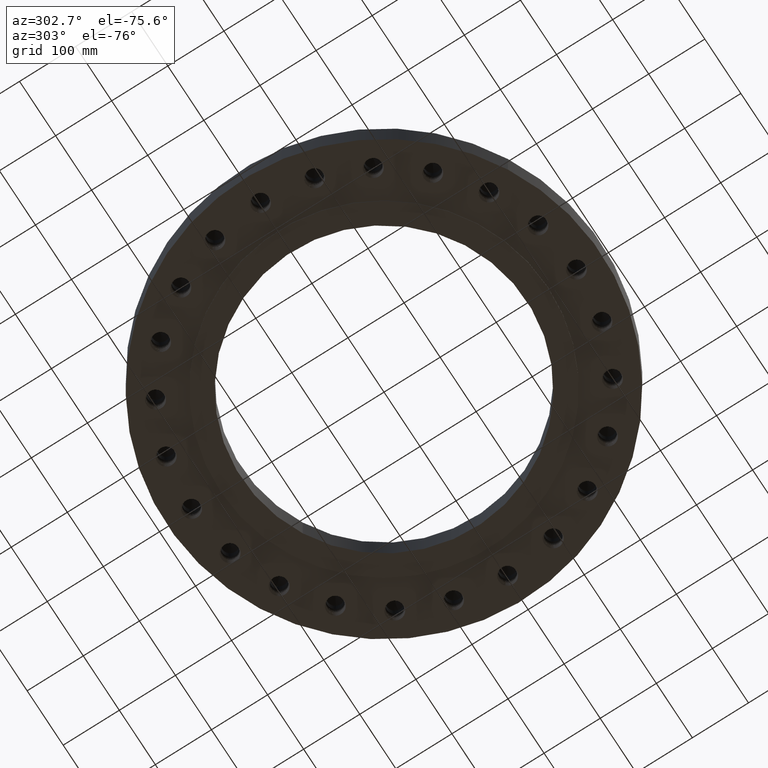
[diagram: clean part render]
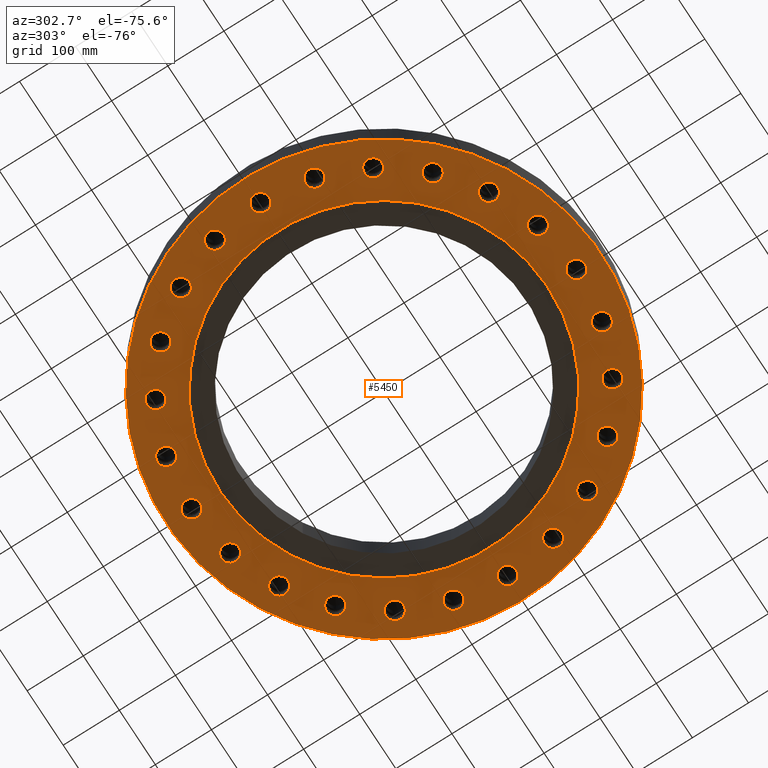
[diagram: same view with one face highlighted and labeled with its STEP entity id]
A machine part, auxiliary view. The second image highlights one B-rep face of the part: STEP entity #5450.
In plain terms, the highlighted planar face has unit normal (0, 0, -1).
Its self-contained STEP definition (entity closure, byte-faithful):
#4249=AXIS2_PLACEMENT_3D('Circle Axis2P3D',#4247,#4248,$) ;
#4269=AXIS2_PLACEMENT_3D('Circle Axis2P3D',#4267,#4268,$) ;
#4289=AXIS2_PLACEMENT_3D('Circle Axis2P3D',#4287,#4288,$) ;
#4301=AXIS2_PLACEMENT_3D('Plane Axis2P3D',#4298,#4299,#4300) ;
#4305=AXIS2_PLACEMENT_3D('Circle Axis2P3D',#4303,#4304,$) ;
#4314=AXIS2_PLACEMENT_3D('Circle Axis2P3D',#4312,#4313,$) ;
#4330=AXIS2_PLACEMENT_3D('Circle Axis2P3D',#4328,#4329,$) ;
#4339=AXIS2_PLACEMENT_3D('Circle Axis2P3D',#4337,#4338,$) ;
#4348=AXIS2_PLACEMENT_3D('Circle Axis2P3D',#4346,#4347,$) ;
#4357=AXIS2_PLACEMENT_3D('Circle Axis2P3D',#4355,#4356,$) ;
#4364=AXIS2_PLACEMENT_3D('Circle Axis2P3D',#4362,#4363,$) ;
#4396=AXIS2_PLACEMENT_3D('Circle Axis2P3D',#4394,#4395,$) ;
#4405=AXIS2_PLACEMENT_3D('Circle Axis2P3D',#4403,#4404,$) ;
#4412=AXIS2_PLACEMENT_3D('Circle Axis2P3D',#4410,#4411,$) ;
#4444=AXIS2_PLACEMENT_3D('Circle Axis2P3D',#4442,#4443,$) ;
#4453=AXIS2_PLACEMENT_3D('Circle Axis2P3D',#4451,#4452,$) ;
#4460=AXIS2_PLACEMENT_3D('Circle Axis2P3D',#4458,#4459,$) ;
#4492=AXIS2_PLACEMENT_3D('Circle Axis2P3D',#4490,#4491,$) ;
#4501=AXIS2_PLACEMENT_3D('Circle Axis2P3D',#4499,#4500,$) ;
#4508=AXIS2_PLACEMENT_3D('Circle Axis2P3D',#4506,#4507,$) ;
#4540=AXIS2_PLACEMENT_3D('Circle Axis2P3D',#4538,#4539,$) ;
#4549=AXIS2_PLACEMENT_3D('Circle Axis2P3D',#4547,#4548,$) ;
#4556=AXIS2_PLACEMENT_3D('Circle Axis2P3D',#4554,#4555,$) ;
#4588=AXIS2_PLACEMENT_3D('Circle Axis2P3D',#4586,#4587,$) ;
#4597=AXIS2_PLACEMENT_3D('Circle Axis2P3D',#4595,#4596,$) ;
#4604=AXIS2_PLACEMENT_3D('Circle Axis2P3D',#4602,#4603,$) ;
#4636=AXIS2_PLACEMENT_3D('Circle Axis2P3D',#4634,#4635,$) ;
#4645=AXIS2_PLACEMENT_3D('Circle Axis2P3D',#4643,#4644,$) ;
#4652=AXIS2_PLACEMENT_3D('Circle Axis2P3D',#4650,#4651,$) ;
#4684=AXIS2_PLACEMENT_3D('Circle Axis2P3D',#4682,#4683,$) ;
#4693=AXIS2_PLACEMENT_3D('Circle Axis2P3D',#4691,#4692,$) ;
#4700=AXIS2_PLACEMENT_3D('Circle Axis2P3D',#4698,#4699,$) ;
#4732=AXIS2_PLACEMENT_3D('Circle Axis2P3D',#4730,#4731,$) ;
#4741=AXIS2_PLACEMENT_3D('Circle Axis2P3D',#4739,#4740,$) ;
#4748=AXIS2_PLACEMENT_3D('Circle Axis2P3D',#4746,#4747,$) ;
#4780=AXIS2_PLACEMENT_3D('Circle Axis2P3D',#4778,#4779,$) ;
#4789=AXIS2_PLACEMENT_3D('Circle Axis2P3D',#4787,#4788,$) ;
#4796=AXIS2_PLACEMENT_3D('Circle Axis2P3D',#4794,#4795,$) ;
#4828=AXIS2_PLACEMENT_3D('Circle Axis2P3D',#4826,#4827,$) ;
#4837=AXIS2_PLACEMENT_3D('Circle Axis2P3D',#4835,#4836,$) ;
#4844=AXIS2_PLACEMENT_3D('Circle Axis2P3D',#4842,#4843,$) ;
#4876=AXIS2_PLACEMENT_3D('Circle Axis2P3D',#4874,#4875,$) ;
#4885=AXIS2_PLACEMENT_3D('Circle Axis2P3D',#4883,#4884,$) ;
#4892=AXIS2_PLACEMENT_3D('Circle Axis2P3D',#4890,#4891,$) ;
#4924=AXIS2_PLACEMENT_3D('Circle Axis2P3D',#4922,#4923,$) ;
#4933=AXIS2_PLACEMENT_3D('Circle Axis2P3D',#4931,#4932,$) ;
#4940=AXIS2_PLACEMENT_3D('Circle Axis2P3D',#4938,#4939,$) ;
#4972=AXIS2_PLACEMENT_3D('Circle Axis2P3D',#4970,#4971,$) ;
#4981=AXIS2_PLACEMENT_3D('Circle Axis2P3D',#4979,#4980,$) ;
#4988=AXIS2_PLACEMENT_3D('Circle Axis2P3D',#4986,#4987,$) ;
#5020=AXIS2_PLACEMENT_3D('Circle Axis2P3D',#5018,#5019,$) ;
#5029=AXIS2_PLACEMENT_3D('Circle Axis2P3D',#5027,#5028,$) ;
#5036=AXIS2_PLACEMENT_3D('Circle Axis2P3D',#5034,#5035,$) ;
#5068=AXIS2_PLACEMENT_3D('Circle Axis2P3D',#5066,#5067,$) ;
#5077=AXIS2_PLACEMENT_3D('Circle Axis2P3D',#5075,#5076,$) ;
#5084=AXIS2_PLACEMENT_3D('Circle Axis2P3D',#5082,#5083,$) ;
#5116=AXIS2_PLACEMENT_3D('Circle Axis2P3D',#5114,#5115,$) ;
#5125=AXIS2_PLACEMENT_3D('Circle Axis2P3D',#5123,#5124,$) ;
#5132=AXIS2_PLACEMENT_3D('Circle Axis2P3D',#5130,#5131,$) ;
#5164=AXIS2_PLACEMENT_3D('Circle Axis2P3D',#5162,#5163,$) ;
#5173=AXIS2_PLACEMENT_3D('Circle Axis2P3D',#5171,#5172,$) ;
#5180=AXIS2_PLACEMENT_3D('Circle Axis2P3D',#5178,#5179,$) ;
#5212=AXIS2_PLACEMENT_3D('Circle Axis2P3D',#5210,#5211,$) ;
#5221=AXIS2_PLACEMENT_3D('Circle Axis2P3D',#5219,#5220,$) ;
#5228=AXIS2_PLACEMENT_3D('Circle Axis2P3D',#5226,#5227,$) ;
#5260=AXIS2_PLACEMENT_3D('Circle Axis2P3D',#5258,#5259,$) ;
#5269=AXIS2_PLACEMENT_3D('Circle Axis2P3D',#5267,#5268,$) ;
#5276=AXIS2_PLACEMENT_3D('Circle Axis2P3D',#5274,#5275,$) ;
#5308=AXIS2_PLACEMENT_3D('Circle Axis2P3D',#5306,#5307,$) ;
#5317=AXIS2_PLACEMENT_3D('Circle Axis2P3D',#5315,#5316,$) ;
#5324=AXIS2_PLACEMENT_3D('Circle Axis2P3D',#5322,#5323,$) ;
#5356=AXIS2_PLACEMENT_3D('Circle Axis2P3D',#5354,#5355,$) ;
#5365=AXIS2_PLACEMENT_3D('Circle Axis2P3D',#5363,#5364,$) ;
#5372=AXIS2_PLACEMENT_3D('Circle Axis2P3D',#5370,#5371,$) ;
#5404=AXIS2_PLACEMENT_3D('Circle Axis2P3D',#5402,#5403,$) ;
#5413=AXIS2_PLACEMENT_3D('Circle Axis2P3D',#5411,#5412,$) ;
#5420=AXIS2_PLACEMENT_3D('Circle Axis2P3D',#5418,#5419,$) ;
#3966=CARTESIAN_POINT('Vertex',(9.54594154606,8.92094154605,3.59554905534E-014)) ;
#4185=CARTESIAN_POINT('Vertex',(9.62269707675,8.92819172735,0.)) ;
#4189=CARTESIAN_POINT('Control Point',(9.54594154606,8.92094154605,3.5881184288E-014)) ;
#4190=CARTESIAN_POINT('Control Point',(9.57166973589,8.92177451581,3.58806913828E-014)) ;
#4191=CARTESIAN_POINT('Control Point',(9.59732165269,8.92419899767,-5.51982904913E-012)) ;
#4192=CARTESIAN_POINT('Control Point',(9.62269704071,8.92819163761,-5.485225135E-012)) ;
#4222=CARTESIAN_POINT('Control Point',(9.54594154606,8.92094154605,-8.74191358787E-018)) ;
#4223=CARTESIAN_POINT('Control Point',(9.52022968675,8.9217739871,-8.74191358532E-018)) ;
#4224=CARTESIAN_POINT('Control Point',(9.49459375078,8.92419597748,-3.87313573878E-011)) ;
#4225=CARTESIAN_POINT('Control Point',(9.46923014511,8.92818607716,-1.17740635701E-010)) ;
#4226=CARTESIAN_POINT('Vertex',(9.46923015247,8.92818624491,0.)) ;
#4247=CARTESIAN_POINT('Axis2P3D Location',(9.54594154606,9.54594154606,0.)) ;
#4251=CARTESIAN_POINT('Vertex',(8.99964640128,9.24749914827,0.)) ;
#4267=CARTESIAN_POINT('Axis2P3D Location',(9.54594154606,9.54594154606,0.)) ;
#4271=CARTESIAN_POINT('Vertex',(10.0922366908,9.84438394384,0.)) ;
#4287=CARTESIAN_POINT('Axis2P3D Location',(9.54594154606,9.54594154606,0.)) ;
#4298=CARTESIAN_POINT('Axis2P3D Location',(0.,15.2500000001,0.)) ;
#4303=CARTESIAN_POINT('Axis2P3D Location',(0.,0.,0.)) ;
#4307=CARTESIAN_POINT('Vertex',(-7.31123946374,-13.3831340689,-4.83952335774E-014)) ;
#4309=CARTESIAN_POINT('Vertex',(7.31123946374,13.3831340689,-4.83952335774E-014)) ;
#4312=CARTESIAN_POINT('Axis2P3D Location',(0.,0.,0.)) ;
#4328=CARTESIAN_POINT('Axis2P3D Location',(0.,0.,0.)) ;
#4332=CARTESIAN_POINT('Vertex',(5.51339369397,10.0921994618,-3.48277837016E-014)) ;
#4334=CARTESIAN_POINT('Vertex',(-5.51339369397,-10.0921994618,-3.48277837016E-014)) ;
#4337=CARTESIAN_POINT('Axis2P3D Location',(0.,0.,0.)) ;
#4346=CARTESIAN_POINT('Axis2P3D Location',(11.6913429511,6.75000000003,0.)) ;
#4350=CARTESIAN_POINT('Vertex',(12.2962661167,6.89688163199,0.)) ;
#4352=CARTESIAN_POINT('Vertex',(11.6055976823,6.13343370279,0.)) ;
#4355=CARTESIAN_POINT('Axis2P3D Location',(11.6913429511,6.75000000003,0.)) ;
#4359=CARTESIAN_POINT('Vertex',(11.0864197856,6.60311836807,8.74191357973E-018)) ;
#4362=CARTESIAN_POINT('Axis2P3D Location',(11.6913429511,6.75000000003,0.)) ;
#4366=CARTESIAN_POINT('Vertex',(11.4573585977,6.17314856996,0.)) ;
#4370=CARTESIAN_POINT('Control Point',(11.5295810479,6.14629635859,0.)) ;
#4371=CARTESIAN_POINT('Control Point',(11.5148088695,6.1507716357,0.)) ;
#4372=CARTESIAN_POINT('Control Point',(11.5001819003,6.15570105739,0.)) ;
#4373=CARTESIAN_POINT('Control Point',(11.4857189794,6.16107866384,0.)) ;
#4374=CARTESIAN_POINT('Control Point',(11.4714385652,6.16689727181,0.)) ;
#4375=CARTESIAN_POINT('Control Point',(11.4573585977,6.17314856996,0.)) ;
#4376=CARTESIAN_POINT('Vertex',(11.5295810479,6.14629635859,3.59554905534E-014)) ;
#4380=CARTESIAN_POINT('Control Point',(11.5295810479,6.14629635859,0.)) ;
#4381=CARTESIAN_POINT('Control Point',(11.5446213148,6.14278374348,0.)) ;
#4382=CARTESIAN_POINT('Control Point',(11.5597630278,6.13973762509,0.)) ;
#4383=CARTESIAN_POINT('Control Point',(11.5749863166,6.13716216849,0.)) ;
#4384=CARTESIAN_POINT('Control Point',(11.5902711947,6.1350602998,0.)) ;
#4385=CARTESIAN_POINT('Control Point',(11.6055976823,6.13343370279,0.)) ;
#4394=CARTESIAN_POINT('Axis2P3D Location',(13.039998655,3.4940571089,0.)) ;
#4398=CARTESIAN_POINT('Vertex',(13.6623253272,3.47936823455,0.)) ;
#4400=CARTESIAN_POINT('Vertex',(12.7975959851,2.92069230736,0.)) ;
#4403=CARTESIAN_POINT('Axis2P3D Location',(13.039998655,3.4940571089,0.)) ;
#4407=CARTESIAN_POINT('Vertex',(12.4176719827,3.50874598324,8.74191357973E-018)) ;
#4410=CARTESIAN_POINT('Axis2P3D Location',(13.039998655,3.4940571089,0.)) ;
#4414=CARTESIAN_POINT('Vertex',(12.6646869888,2.99742102157,0.)) ;
#4418=CARTESIAN_POINT('Control Point',(12.727498655,2.95279123153,0.)) ;
#4419=CARTESIAN_POINT('Control Point',(12.7143881133,2.96093733838,0.)) ;
#4420=CARTESIAN_POINT('Control Point',(12.7015353741,2.9694845323,0.)) ;
#4421=CARTESIAN_POINT('Control Point',(12.6889570923,2.97842218062,0.)) ;
#4422=CARTESIAN_POINT('Control Point',(12.676669238,2.98773856749,0.)) ;
#4423=CARTESIAN_POINT('Control Point',(12.6646869888,2.99742102157,0.)) ;
#4424=CARTESIAN_POINT('Vertex',(12.727498655,2.95279123153,3.59554905534E-014)) ;
#4428=CARTESIAN_POINT('Control Point',(12.727498655,2.95279123153,0.)) ;
#4429=CARTESIAN_POINT('Control Point',(12.7411173055,2.94550559836,0.)) ;
#4430=CARTESIAN_POINT('Control Point',(12.7549546836,2.93864431024,0.)) ;
#4431=CARTESIAN_POINT('Control Point',(12.7689926742,2.93221653314,0.)) ;
#4432=CARTESIAN_POINT('Control Point',(12.7832127291,2.92623026632,0.)) ;
#4433=CARTESIAN_POINT('Control Point',(12.7975959851,2.92069230736,0.)) ;
#4442=CARTESIAN_POINT('Axis2P3D Location',(13.5000000001,4.47585975282E-015,0.)) ;
#4446=CARTESIAN_POINT('Vertex',(14.0973196447,-0.175258358137,0.)) ;
#4448=CARTESIAN_POINT('Vertex',(13.1174592704,-0.491089442143,0.)) ;
#4451=CARTESIAN_POINT('Axis2P3D Location',(13.5000000001,4.47585975282E-015,0.)) ;
#4455=CARTESIAN_POINT('Vertex',(12.9026803554,0.175258358137,0.)) ;
#4458=CARTESIAN_POINT('Axis2P3D Location',(13.5000000001,4.47585975282E-015,0.)) ;
#4462=CARTESIAN_POINT('Vertex',(13.0089378909,-0.382575815985,0.)) ;
#4466=CARTESIAN_POINT('Control Point',(13.0580582618,-0.441941738243,0.)) ;
#4467=CARTESIAN_POINT('Control Point',(13.0475028186,-0.43067994538,0.)) ;
#4468=CARTESIAN_POINT('Control Point',(13.0373002025,-0.419097456364,0.)) ;
#4469=CARTESIAN_POINT('Control Point',(13.0274637489,-0.407208852147,0.)) ;
#4470=CARTESIAN_POINT('Control Point',(13.0180058514,-0.395029582739,0.)) ;
#4471=CARTESIAN_POINT('Control Point',(13.0089378909,-0.382575815985,0.)) ;
#4472=CARTESIAN_POINT('Vertex',(13.0580582618,-0.441941738243,3.59554905534E-014)) ;
#4476=CARTESIAN_POINT('Control Point',(13.0580582618,-0.441941738243,0.)) ;
#4477=CARTESIAN_POINT('Control Point',(13.0693272075,-0.452503885606,0.)) ;
#4478=CARTESIAN_POINT('Control Point',(13.0809172564,-0.462712758013,0.)) ;
#4479=CARTESIAN_POINT('Control Point',(13.0928132829,-0.472554813235,0.)) ;
#4480=CARTESIAN_POINT('Control Point',(13.1049994413,-0.482017523977,0.)) ;
#4481=CARTESIAN_POINT('Control Point',(13.1174592704,-0.491089442143,0.)) ;
#4490=CARTESIAN_POINT('Axis2P3D Location',(13.039998655,-3.4940571089,0.)) ;
#4494=CARTESIAN_POINT('Vertex',(13.5716049254,-3.81794138335,0.)) ;
#4496=CARTESIAN_POINT('Vertex',(12.5433893841,-3.86940425771,0.)) ;
#4499=CARTESIAN_POINT('Axis2P3D Location',(13.039998655,-3.4940571089,0.)) ;
#4503=CARTESIAN_POINT('Vertex',(12.5083923845,-3.17017283445,0.)) ;
#4506=CARTESIAN_POINT('Axis2P3D Location',(13.039998655,-3.4940571089,0.)) ;
#4510=CARTESIAN_POINT('Vertex',(12.4666511741,-3.73650074389,0.)) ;
#4514=CARTESIAN_POINT('Control Point',(12.4987327776,-3.8065571089,0.)) ;
#4515=CARTESIAN_POINT('Control Point',(12.4914517689,-3.79294710259,0.)) ;
#4516=CARTESIAN_POINT('Control Point',(12.4845945672,-3.77911864596,0.)) ;
#4517=CARTESIAN_POINT('Control Point',(12.4781702798,-3.76508927457,0.)) ;
#4518=CARTESIAN_POINT('Control Point',(12.4721868792,-3.75087711971,0.)) ;
#4519=CARTESIAN_POINT('Control Point',(12.4666511741,-3.73650074389,0.)) ;
#4520=CARTESIAN_POINT('Vertex',(12.4987327776,-3.8065571089,3.59554905534E-014)) ;
#4524=CARTESIAN_POINT('Control Point',(12.4987327776,-3.8065571089,0.)) ;
#4525=CARTESIAN_POINT('Control Point',(12.5068840583,-3.81967597756,0.)) ;
#4526=CARTESIAN_POINT('Control Point',(12.5154369353,-3.83253671646,0.)) ;
#4527=CARTESIAN_POINT('Control Point',(12.5243803032,-3.84512233,0.)) ;
#4528=CARTESIAN_POINT('Control Point',(12.5337020985,-3.85741661657,0.)) ;
#4529=CARTESIAN_POINT('Control Point',(12.5433893841,-3.86940425771,0.)) ;
#4538=CARTESIAN_POINT('Axis2P3D Location',(11.6913429511,-6.75000000003,0.)) ;
#4542=CARTESIAN_POINT('Vertex',(12.1210077585,-7.20043801273,0.)) ;
#4544=CARTESIAN_POINT('Vertex',(11.1145082402,-6.98402556761,0.)) ;
#4547=CARTESIAN_POINT('Axis2P3D Location',(11.6913429511,-6.75000000003,0.)) ;
#4551=CARTESIAN_POINT('Vertex',(11.2616781437,-6.29956198732,8.74191357973E-018)) ;
#4554=CARTESIAN_POINT('Axis2P3D Location',(11.6913429511,-6.75000000003,0.)) ;
#4558=CARTESIAN_POINT('Vertex',(11.0747827818,-6.83578932098,0.)) ;
#4562=CARTESIAN_POINT('Control Point',(11.0876393097,-6.91176190322,0.)) ;
#4563=CARTESIAN_POINT('Control Point',(11.0841289242,-6.8967311829,0.)) ;
#4564=CARTESIAN_POINT('Control Point',(11.081084444,-6.88159914512,0.)) ;
#4565=CARTESIAN_POINT('Control Point',(11.0785101273,-6.86638508504,0.)) ;
#4566=CARTESIAN_POINT('Control Point',(11.0764089826,-6.85110857959,0.)) ;
#4567=CARTESIAN_POINT('Control Point',(11.0747827818,-6.83578932098,0.)) ;
#4568=CARTESIAN_POINT('Vertex',(11.0876393097,-6.91176190322,3.59554905534E-014)) ;
#4572=CARTESIAN_POINT('Control Point',(11.0876393097,-6.91176190322,0.)) ;
#4573=CARTESIAN_POINT('Control Point',(11.0921174292,-6.92654346396,0.)) ;
#4574=CARTESIAN_POINT('Control Point',(11.0970502698,-6.94117963125,0.)) ;
#4575=CARTESIAN_POINT('Control Point',(11.1024315033,-6.95565111435,0.)) ;
#4576=CARTESIAN_POINT('Control Point',(11.1082536707,-6.96993914143,0.)) ;
#4577=CARTESIAN_POINT('Control Point',(11.1145082402,-6.98402556761,0.)) ;
#4586=CARTESIAN_POINT('Axis2P3D Location',(9.54594154606,-9.54594154606,0.)) ;
#4590=CARTESIAN_POINT('Vertex',(9.84438394384,-10.0922366908,0.)) ;
#4592=CARTESIAN_POINT('Vertex',(8.92819172735,-9.62269707675,0.)) ;
#4595=CARTESIAN_POINT('Axis2P3D Location',(9.54594154606,-9.54594154606,0.)) ;
#4599=CARTESIAN_POINT('Vertex',(9.24749914827,-8.99964640128,0.)) ;
#4602=CARTESIAN_POINT('Axis2P3D Location',(9.54594154606,-9.54594154606,0.)) ;
#4606=CARTESIAN_POINT('Vertex',(8.92818624491,-9.46923015246,0.)) ;
#4610=CARTESIAN_POINT('Control Point',(8.92094154605,-9.54594154606,0.)) ;
#4611=CARTESIAN_POINT('Control Point',(8.92144101068,-9.53051443047,0.)) ;
#4612=CARTESIAN_POINT('Control Point',(8.92241672819,-9.51511003491,0.)) ;
#4613=CARTESIAN_POINT('Control Point',(8.92386781778,-9.49974809918,0.)) ;
#4614=CARTESIAN_POINT('Control Point',(8.92579211833,-9.48444831173,0.)) ;
#4615=CARTESIAN_POINT('Control Point',(8.92818624491,-9.46923015246,0.)) ;
#4616=CARTESIAN_POINT('Vertex',(8.92094154605,-9.54594154606,3.59554905534E-014)) ;
#4620=CARTESIAN_POINT('Control Point',(8.92094154605,-9.54594154606,0.)) ;
#4621=CARTESIAN_POINT('Control Point',(8.92144132791,-9.56137845996,0.)) ;
#4622=CARTESIAN_POINT('Control Point',(8.92241796718,-9.57679262503,0.)) ;
#4623=CARTESIAN_POINT('Control Point',(8.9238703442,-9.59216377003,0.)) ;
#4624=CARTESIAN_POINT('Control Point',(8.9257961125,-9.60747183219,0.)) ;
#4625=CARTESIAN_POINT('Control Point',(8.92819172735,-9.62269707675,0.)) ;
#4634=CARTESIAN_POINT('Axis2P3D Location',(6.75000000003,-11.6913429511,0.)) ;
#4638=CARTESIAN_POINT('Vertex',(6.89688163199,-12.2962661167,0.)) ;
#4640=CARTESIAN_POINT('Vertex',(6.13343370279,-11.6055976824,0.)) ;
#4643=CARTESIAN_POINT('Axis2P3D Location',(6.75000000003,-11.6913429511,0.)) ;
#4647=CARTESIAN_POINT('Vertex',(6.60311836807,-11.0864197856,8.74191357973E-018)) ;
#4650=CARTESIAN_POINT('Axis2P3D Location',(6.75000000003,-11.6913429511,0.)) ;
#4654=CARTESIAN_POINT('Vertex',(6.17314856995,-11.4573585978,0.)) ;
#4658=CARTESIAN_POINT('Control Point',(6.14629635859,-11.5295810479,0.)) ;
#4659=CARTESIAN_POINT('Control Point',(6.1507716357,-11.5148088695,0.)) ;
#4660=CARTESIAN_POINT('Control Point',(6.15570105739,-11.5001819003,0.)) ;
#4661=CARTESIAN_POINT('Control Point',(6.16107866384,-11.4857189795,0.)) ;
#4662=CARTESIAN_POINT('Control Point',(6.16689727181,-11.4714385653,0.)) ;
#4663=CARTESIAN_POINT('Control Point',(6.17314856995,-11.4573585978,0.)) ;
#4664=CARTESIAN_POINT('Vertex',(6.14629635859,-11.5295810479,3.59554905534E-014)) ;
#4668=CARTESIAN_POINT('Control Point',(6.14629635859,-11.5295810479,0.)) ;
#4669=CARTESIAN_POINT('Control Point',(6.14278374348,-11.5446213148,0.)) ;
#4670=CARTESIAN_POINT('Control Point',(6.13973762508,-11.5597630278,0.)) ;
#4671=CARTESIAN_POINT('Control Point',(6.13716216849,-11.5749863166,0.)) ;
#4672=CARTESIAN_POINT('Control Point',(6.13506029979,-11.5902711947,0.)) ;
#4673=CARTESIAN_POINT('Control Point',(6.13343370279,-11.6055976824,0.)) ;
#4682=CARTESIAN_POINT('Axis2P3D Location',(3.4940571089,-13.039998655,0.)) ;
#4686=CARTESIAN_POINT('Vertex',(3.47936823455,-13.6623253272,0.)) ;
#4688=CARTESIAN_POINT('Vertex',(2.92069230737,-12.7975959851,0.)) ;
#4691=CARTESIAN_POINT('Axis2P3D Location',(3.4940571089,-13.039998655,0.)) ;
#4695=CARTESIAN_POINT('Vertex',(3.50874598324,-12.4176719827,8.74191357973E-018)) ;
#4698=CARTESIAN_POINT('Axis2P3D Location',(3.4940571089,-13.039998655,0.)) ;
#4702=CARTESIAN_POINT('Vertex',(2.99742102156,-12.6646869888,0.)) ;
#4706=CARTESIAN_POINT('Control Point',(2.95279123153,-12.727498655,0.)) ;
#4707=CARTESIAN_POINT('Control Point',(2.96093733838,-12.7143881133,0.)) ;
#4708=CARTESIAN_POINT('Control Point',(2.9694845323,-12.7015353741,0.)) ;
#4709=CARTESIAN_POINT('Control Point',(2.97842218062,-12.6889570923,0.)) ;
#4710=CARTESIAN_POINT('Control Point',(2.98773856749,-12.676669238,0.)) ;
#4711=CARTESIAN_POINT('Control Point',(2.99742102156,-12.6646869888,0.)) ;
#4712=CARTESIAN_POINT('Vertex',(2.95279123153,-12.727498655,3.59554905534E-014)) ;
#4716=CARTESIAN_POINT('Control Point',(2.95279123153,-12.727498655,0.)) ;
#4717=CARTESIAN_POINT('Control Point',(2.94550559836,-12.7411173055,0.)) ;
#4718=CARTESIAN_POINT('Control Point',(2.93864431024,-12.7549546836,0.)) ;
#4719=CARTESIAN_POINT('Control Point',(2.93221653314,-12.7689926742,0.)) ;
#4720=CARTESIAN_POINT('Control Point',(2.92623026633,-12.7832127291,0.)) ;
#4721=CARTESIAN_POINT('Control Point',(2.92069230737,-12.7975959851,0.)) ;
#4730=CARTESIAN_POINT('Axis2P3D Location',(1.60851209867E-015,-13.5000000001,0.)) ;
#4734=CARTESIAN_POINT('Vertex',(-0.175258358137,-14.0973196447,0.)) ;
#4736=CARTESIAN_POINT('Vertex',(-0.491089442138,-13.1174592704,0.)) ;
#4739=CARTESIAN_POINT('Axis2P3D Location',(4.19611851827E-016,-13.5000000001,0.)) ;
#4743=CARTESIAN_POINT('Vertex',(0.175258358137,-12.9026803554,0.)) ;
#4746=CARTESIAN_POINT('Axis2P3D Location',(1.60851209867E-015,-13.5000000001,0.)) ;
#4750=CARTESIAN_POINT('Vertex',(-0.382575815983,-13.0089378909,0.)) ;
#4754=CARTESIAN_POINT('Control Point',(-0.441941738243,-13.0580582618,0.)) ;
#4755=CARTESIAN_POINT('Control Point',(-0.430679945379,-13.0475028186,0.)) ;
#4756=CARTESIAN_POINT('Control Point',(-0.419097456362,-13.0373002025,0.)) ;
#4757=CARTESIAN_POINT('Control Point',(-0.407208852145,-13.0274637489,0.)) ;
#4758=CARTESIAN_POINT('Control Point',(-0.395029582737,-13.0180058514,0.)) ;
#4759=CARTESIAN_POINT('Control Point',(-0.382575815983,-13.0089378909,0.)) ;
#4760=CARTESIAN_POINT('Vertex',(-0.441941738243,-13.0580582618,3.59554905534E-014)) ;
#4764=CARTESIAN_POINT('Control Point',(-0.441941738243,-13.0580582618,0.)) ;
#4765=CARTESIAN_POINT('Control Point',(-0.452503885605,-13.0693272075,0.)) ;
#4766=CARTESIAN_POINT('Control Point',(-0.46271275801,-13.0809172564,0.)) ;
#4767=CARTESIAN_POINT('Control Point',(-0.472554813231,-13.0928132829,0.)) ;
#4768=CARTESIAN_POINT('Control Point',(-0.482017523972,-13.1049994412,0.)) ;
#4769=CARTESIAN_POINT('Control Point',(-0.491089442138,-13.1174592704,0.)) ;
#4778=CARTESIAN_POINT('Axis2P3D Location',(-3.4940571089,-13.039998655,0.)) ;
#4782=CARTESIAN_POINT('Vertex',(-3.81794138335,-13.5716049254,0.)) ;
#4784=CARTESIAN_POINT('Vertex',(-3.86940425772,-12.5433893841,0.)) ;
#4787=CARTESIAN_POINT('Axis2P3D Location',(-3.4940571089,-13.039998655,0.)) ;
#4791=CARTESIAN_POINT('Vertex',(-3.17017283445,-12.5083923845,8.74191357973E-018)) ;
#4794=CARTESIAN_POINT('Axis2P3D Location',(-3.4940571089,-13.039998655,0.)) ;
#4798=CARTESIAN_POINT('Vertex',(-3.73650074389,-12.4666511741,0.)) ;
#4802=CARTESIAN_POINT('Control Point',(-3.8065571089,-12.4987327776,0.)) ;
#4803=CARTESIAN_POINT('Control Point',(-3.79294710259,-12.4914517689,0.)) ;
#4804=CARTESIAN_POINT('Control Point',(-3.77911864596,-12.4845945672,0.)) ;
#4805=CARTESIAN_POINT('Control Point',(-3.76508927457,-12.4781702798,0.)) ;
#4806=CARTESIAN_POINT('Control Point',(-3.75087711971,-12.4721868792,0.)) ;
#4807=CARTESIAN_POINT('Control Point',(-3.73650074389,-12.4666511741,0.)) ;
#4808=CARTESIAN_POINT('Vertex',(-3.8065571089,-12.4987327776,3.59554905534E-014)) ;
#4812=CARTESIAN_POINT('Control Point',(-3.8065571089,-12.4987327776,0.)) ;
#4813=CARTESIAN_POINT('Control Point',(-3.81967597757,-12.5068840583,0.)) ;
#4814=CARTESIAN_POINT('Control Point',(-3.83253671647,-12.5154369353,0.)) ;
#4815=CARTESIAN_POINT('Control Point',(-3.84512233001,-12.5243803032,0.)) ;
#4816=CARTESIAN_POINT('Control Point',(-3.85741661658,-12.5337020985,0.)) ;
#4817=CARTESIAN_POINT('Control Point',(-3.86940425772,-12.5433893841,0.)) ;
#4826=CARTESIAN_POINT('Axis2P3D Location',(-6.75000000003,-11.6913429511,0.)) ;
#4830=CARTESIAN_POINT('Vertex',(-7.20043801273,-12.1210077585,0.)) ;
#4832=CARTESIAN_POINT('Vertex',(-6.98402556761,-11.1145082402,0.)) ;
#4835=CARTESIAN_POINT('Axis2P3D Location',(-6.75000000003,-11.6913429511,0.)) ;
#4839=CARTESIAN_POINT('Vertex',(-6.29956198732,-11.2616781437,0.)) ;
#4842=CARTESIAN_POINT('Axis2P3D Location',(-6.75000000003,-11.6913429511,0.)) ;
#4846=CARTESIAN_POINT('Vertex',(-6.83578932092,-11.0747827818,0.)) ;
#4850=CARTESIAN_POINT('Control Point',(-6.91176190322,-11.0876393097,0.)) ;
#4851=CARTESIAN_POINT('Control Point',(-6.89673118289,-11.0841289242,0.)) ;
#4852=CARTESIAN_POINT('Control Point',(-6.8815991451,-11.0810844439,0.)) ;
#4853=CARTESIAN_POINT('Control Point',(-6.86638508501,-11.0785101273,0.)) ;
#4854=CARTESIAN_POINT('Control Point',(-6.85110857955,-11.0764089825,0.)) ;
#4855=CARTESIAN_POINT('Control Point',(-6.83578932092,-11.0747827818,0.)) ;
#4856=CARTESIAN_POINT('Vertex',(-6.91176190322,-11.0876393097,3.59554905534E-014)) ;
#4860=CARTESIAN_POINT('Control Point',(-6.91176190322,-11.0876393097,0.)) ;
#4861=CARTESIAN_POINT('Control Point',(-6.92654346396,-11.0921174292,0.)) ;
#4862=CARTESIAN_POINT('Control Point',(-6.94117963125,-11.0970502698,0.)) ;
#4863=CARTESIAN_POINT('Control Point',(-6.95565111435,-11.1024315033,0.)) ;
#4864=CARTESIAN_POINT('Control Point',(-6.96993914143,-11.1082536707,0.)) ;
#4865=CARTESIAN_POINT('Control Point',(-6.98402556761,-11.1145082402,0.)) ;
#4874=CARTESIAN_POINT('Axis2P3D Location',(-9.54594154606,-9.54594154606,0.)) ;
#4878=CARTESIAN_POINT('Vertex',(-10.0922366908,-9.84438394384,0.)) ;
#4880=CARTESIAN_POINT('Vertex',(-9.62269707675,-8.92819172735,0.)) ;
#4883=CARTESIAN_POINT('Axis2P3D Location',(-9.54594154606,-9.54594154606,0.)) ;
#4887=CARTESIAN_POINT('Vertex',(-8.99964640128,-9.24749914827,0.)) ;
#4890=CARTESIAN_POINT('Axis2P3D Location',(-9.54594154606,-9.54594154606,0.)) ;
#4894=CARTESIAN_POINT('Vertex',(-9.46923015245,-8.92818624491,0.)) ;
#4898=CARTESIAN_POINT('Control Point',(-9.54594154606,-8.92094154605,0.)) ;
#4899=CARTESIAN_POINT('Control Point',(-9.53051443047,-8.92144101068,0.)) ;
#4900=CARTESIAN_POINT('Control Point',(-9.5151100349,-8.92241672819,0.)) ;
#4901=CARTESIAN_POINT('Control Point',(-9.49974809917,-8.92386781778,0.)) ;
#4902=CARTESIAN_POINT('Control Point',(-9.48444831172,-8.92579211833,0.)) ;
#4903=CARTESIAN_POINT('Control Point',(-9.46923015245,-8.92818624491,0.)) ;
#4904=CARTESIAN_POINT('Vertex',(-9.54594154606,-8.92094154605,3.59554905534E-014)) ;
#4908=CARTESIAN_POINT('Control Point',(-9.54594154606,-8.92094154605,0.)) ;
#4909=CARTESIAN_POINT('Control Point',(-9.56137845996,-8.92144132791,0.)) ;
#4910=CARTESIAN_POINT('Control Point',(-9.57679262503,-8.92241796718,0.)) ;
#4911=CARTESIAN_POINT('Control Point',(-9.59216377003,-8.9238703442,0.)) ;
#4912=CARTESIAN_POINT('Control Point',(-9.6074718322,-8.9257961125,0.)) ;
#4913=CARTESIAN_POINT('Control Point',(-9.62269707675,-8.92819172735,0.)) ;
#4922=CARTESIAN_POINT('Axis2P3D Location',(-11.6913429511,-6.75000000003,0.)) ;
#4926=CARTESIAN_POINT('Vertex',(-12.2962661167,-6.89688163199,0.)) ;
#4928=CARTESIAN_POINT('Vertex',(-11.6055976824,-6.13343370279,0.)) ;
#4931=CARTESIAN_POINT('Axis2P3D Location',(-11.6913429511,-6.75000000003,0.)) ;
#4935=CARTESIAN_POINT('Vertex',(-11.0864197856,-6.60311836807,8.74191357973E-018)) ;
#4938=CARTESIAN_POINT('Axis2P3D Location',(-11.6913429511,-6.75000000003,0.)) ;
#4942=CARTESIAN_POINT('Vertex',(-11.4573585977,-6.17314856996,0.)) ;
#4946=CARTESIAN_POINT('Control Point',(-11.5295810479,-6.14629635859,0.)) ;
#4947=CARTESIAN_POINT('Control Point',(-11.5148088695,-6.1507716357,0.)) ;
#4948=CARTESIAN_POINT('Control Point',(-11.5001819003,-6.15570105739,0.)) ;
#4949=CARTESIAN_POINT('Control Point',(-11.4857189794,-6.16107866385,0.)) ;
#4950=CARTESIAN_POINT('Control Point',(-11.4714385652,-6.16689727181,0.)) ;
#4951=CARTESIAN_POINT('Control Point',(-11.4573585977,-6.17314856996,0.)) ;
#4952=CARTESIAN_POINT('Vertex',(-11.5295810479,-6.14629635859,3.59554905534E-014)) ;
#4956=CARTESIAN_POINT('Control Point',(-11.5295810479,-6.14629635859,0.)) ;
#4957=CARTESIAN_POINT('Control Point',(-11.5446213148,-6.14278374348,0.)) ;
#4958=CARTESIAN_POINT('Control Point',(-11.5597630278,-6.13973762508,0.)) ;
#4959=CARTESIAN_POINT('Control Point',(-11.5749863166,-6.13716216849,0.)) ;
#4960=CARTESIAN_POINT('Control Point',(-11.5902711947,-6.13506029979,0.)) ;
#4961=CARTESIAN_POINT('Control Point',(-11.6055976824,-6.13343370279,0.)) ;
#4970=CARTESIAN_POINT('Axis2P3D Location',(-13.039998655,-3.4940571089,0.)) ;
#4974=CARTESIAN_POINT('Vertex',(-13.6623253272,-3.47936823455,0.)) ;
#4976=CARTESIAN_POINT('Vertex',(-12.797595985,-2.92069230737,0.)) ;
#4979=CARTESIAN_POINT('Axis2P3D Location',(-13.039998655,-3.4940571089,0.)) ;
#4983=CARTESIAN_POINT('Vertex',(-12.4176719827,-3.50874598324,-8.74191357973E-018)) ;
#4986=CARTESIAN_POINT('Axis2P3D Location',(-13.039998655,-3.4940571089,0.)) ;
#4990=CARTESIAN_POINT('Vertex',(-12.6646869888,-2.99742102156,0.)) ;
#4994=CARTESIAN_POINT('Control Point',(-12.727498655,-2.95279123153,0.)) ;
#4995=CARTESIAN_POINT('Control Point',(-12.7143881133,-2.96093733838,0.)) ;
#4996=CARTESIAN_POINT('Control Point',(-12.7015353741,-2.9694845323,0.)) ;
#4997=CARTESIAN_POINT('Control Point',(-12.6889570923,-2.97842218062,0.)) ;
#4998=CARTESIAN_POINT('Control Point',(-12.676669238,-2.98773856749,0.)) ;
#4999=CARTESIAN_POINT('Control Point',(-12.6646869888,-2.99742102156,0.)) ;
#5000=CARTESIAN_POINT('Vertex',(-12.727498655,-2.95279123153,3.59554905534E-014)) ;
#5004=CARTESIAN_POINT('Control Point',(-12.727498655,-2.95279123153,0.)) ;
#5005=CARTESIAN_POINT('Control Point',(-12.7411173055,-2.94550559837,0.)) ;
#5006=CARTESIAN_POINT('Control Point',(-12.7549546836,-2.93864431024,0.)) ;
#5007=CARTESIAN_POINT('Control Point',(-12.7689926742,-2.93221653315,0.)) ;
#5008=CARTESIAN_POINT('Control Point',(-12.7832127291,-2.92623026633,0.)) ;
#5009=CARTESIAN_POINT('Control Point',(-12.797595985,-2.92069230737,0.)) ;
#5018=CARTESIAN_POINT('Axis2P3D Location',(-13.5000000001,-4.47585975282E-015,0.)) ;
#5022=CARTESIAN_POINT('Vertex',(-14.0973196447,0.175258358137,0.)) ;
#5024=CARTESIAN_POINT('Vertex',(-13.1174592704,0.491089442121,0.)) ;
#5027=CARTESIAN_POINT('Axis2P3D Location',(-13.5000000001,-6.71378962923E-015,0.)) ;
#5031=CARTESIAN_POINT('Vertex',(-12.9026803554,-0.175258358137,-1.04902962957E-016)) ;
#5034=CARTESIAN_POINT('Axis2P3D Location',(-13.5000000001,-4.47585975282E-015,0.)) ;
#5038=CARTESIAN_POINT('Vertex',(-13.0089378909,0.38257581595,0.)) ;
#5042=CARTESIAN_POINT('Control Point',(-13.0580582618,0.441941738243,0.)) ;
#5043=CARTESIAN_POINT('Control Point',(-13.0475028186,0.430679945372,0.)) ;
#5044=CARTESIAN_POINT('Control Point',(-13.0373002025,0.419097456348,0.)) ;
#5045=CARTESIAN_POINT('Control Point',(-13.0274637489,0.407208852124,0.)) ;
#5046=CARTESIAN_POINT('Control Point',(-13.0180058514,0.39502958271,0.)) ;
#5047=CARTESIAN_POINT('Control Point',(-13.0089378909,0.38257581595,0.)) ;
#5048=CARTESIAN_POINT('Vertex',(-13.0580582618,0.441941738243,3.59554905534E-014)) ;
#5052=CARTESIAN_POINT('Control Point',(-13.0580582618,0.441941738243,0.)) ;
#5053=CARTESIAN_POINT('Control Point',(-13.0693272074,0.4525038856,0.)) ;
#5054=CARTESIAN_POINT('Control Point',(-13.0809172563,0.462712758001,0.)) ;
#5055=CARTESIAN_POINT('Control Point',(-13.0928132828,0.472554813218,0.)) ;
#5056=CARTESIAN_POINT('Control Point',(-13.1049994412,0.482017523957,0.)) ;
#5057=CARTESIAN_POINT('Control Point',(-13.1174592704,0.491089442121,0.)) ;
#5066=CARTESIAN_POINT('Axis2P3D Location',(-13.039998655,3.4940571089,0.)) ;
#5070=CARTESIAN_POINT('Vertex',(-13.5716049254,3.81794138335,0.)) ;
#5072=CARTESIAN_POINT('Vertex',(-12.5433893841,3.86940425769,0.)) ;
#5075=CARTESIAN_POINT('Axis2P3D Location',(-13.039998655,3.4940571089,0.)) ;
#5079=CARTESIAN_POINT('Vertex',(-12.5083923845,3.17017283445,8.74191357973E-018)) ;
#5082=CARTESIAN_POINT('Axis2P3D Location',(-13.039998655,3.4940571089,0.)) ;
#5086=CARTESIAN_POINT('Vertex',(-12.4666511741,3.73650074389,0.)) ;
#5090=CARTESIAN_POINT('Control Point',(-12.4987327776,3.8065571089,0.)) ;
#5091=CARTESIAN_POINT('Control Point',(-12.4914517689,3.79294710259,0.)) ;
#5092=CARTESIAN_POINT('Control Point',(-12.4845945672,3.77911864596,0.)) ;
#5093=CARTESIAN_POINT('Control Point',(-12.4781702798,3.76508927457,0.)) ;
#5094=CARTESIAN_POINT('Control Point',(-12.4721868792,3.75087711971,0.)) ;
#5095=CARTESIAN_POINT('Control Point',(-12.4666511741,3.73650074389,0.)) ;
#5096=CARTESIAN_POINT('Vertex',(-12.4987327776,3.8065571089,3.59554905534E-014)) ;
#5100=CARTESIAN_POINT('Control Point',(-12.4987327776,3.8065571089,0.)) ;
#5101=CARTESIAN_POINT('Control Point',(-12.5068840583,3.81967597756,0.)) ;
#5102=CARTESIAN_POINT('Control Point',(-12.5154369353,3.83253671645,0.)) ;
#5103=CARTESIAN_POINT('Control Point',(-12.5243803032,3.84512232999,0.)) ;
#5104=CARTESIAN_POINT('Control Point',(-12.5337020985,3.85741661655,0.)) ;
#5105=CARTESIAN_POINT('Control Point',(-12.5433893841,3.86940425769,0.)) ;
#5114=CARTESIAN_POINT('Axis2P3D Location',(-11.6913429511,6.75000000003,0.)) ;
#5118=CARTESIAN_POINT('Vertex',(-12.1210077585,7.20043801273,0.)) ;
#5120=CARTESIAN_POINT('Vertex',(-11.1145082402,6.98402556762,0.)) ;
#5123=CARTESIAN_POINT('Axis2P3D Location',(-11.6913429511,6.75000000003,0.)) ;
#5127=CARTESIAN_POINT('Vertex',(-11.2616781437,6.29956198732,8.74191357973E-018)) ;
#5130=CARTESIAN_POINT('Axis2P3D Location',(-11.6913429511,6.75000000003,0.)) ;
#5134=CARTESIAN_POINT('Vertex',(-11.0747827818,6.83578932096,0.)) ;
#5138=CARTESIAN_POINT('Control Point',(-11.0876393097,6.91176190322,0.)) ;
#5139=CARTESIAN_POINT('Control Point',(-11.0841289242,6.8967311829,0.)) ;
#5140=CARTESIAN_POINT('Control Point',(-11.081084444,6.88159914512,0.)) ;
#5141=CARTESIAN_POINT('Control Point',(-11.0785101273,6.86638508503,0.)) ;
#5142=CARTESIAN_POINT('Control Point',(-11.0764089825,6.85110857958,0.)) ;
#5143=CARTESIAN_POINT('Control Point',(-11.0747827818,6.83578932096,0.)) ;
#5144=CARTESIAN_POINT('Vertex',(-11.0876393097,6.91176190322,3.59554905534E-014)) ;
#5148=CARTESIAN_POINT('Control Point',(-11.0876393097,6.91176190322,0.)) ;
#5149=CARTESIAN_POINT('Control Point',(-11.0921174292,6.92654346397,0.)) ;
#5150=CARTESIAN_POINT('Control Point',(-11.0970502698,6.94117963126,0.)) ;
#5151=CARTESIAN_POINT('Control Point',(-11.1024315033,6.95565111436,0.)) ;
#5152=CARTESIAN_POINT('Control Point',(-11.1082536707,6.96993914144,0.)) ;
#5153=CARTESIAN_POINT('Control Point',(-11.1145082402,6.98402556762,0.)) ;
#5162=CARTESIAN_POINT('Axis2P3D Location',(-9.54594154606,9.54594154606,0.)) ;
#5166=CARTESIAN_POINT('Vertex',(-9.84438394384,10.0922366908,0.)) ;
#5168=CARTESIAN_POINT('Vertex',(-8.92819172735,9.62269707675,0.)) ;
#5171=CARTESIAN_POINT('Axis2P3D Location',(-9.54594154606,9.54594154606,0.)) ;
#5175=CARTESIAN_POINT('Vertex',(-9.24749914827,8.99964640128,0.)) ;
#5178=CARTESIAN_POINT('Axis2P3D Location',(-9.54594154606,9.54594154606,0.)) ;
#5182=CARTESIAN_POINT('Vertex',(-8.92818624491,9.46923015249,0.)) ;
#5186=CARTESIAN_POINT('Control Point',(-8.92094154605,9.54594154606,0.)) ;
#5187=CARTESIAN_POINT('Control Point',(-8.92144101068,9.53051443048,0.)) ;
#5188=CARTESIAN_POINT('Control Point',(-8.92241672818,9.51511003492,0.)) ;
#5189=CARTESIAN_POINT('Control Point',(-8.92386781778,9.49974809919,0.)) ;
#5190=CARTESIAN_POINT('Control Point',(-8.92579211832,9.48444831175,0.)) ;
#5191=CARTESIAN_POINT('Control Point',(-8.92818624491,9.46923015249,0.)) ;
#5192=CARTESIAN_POINT('Vertex',(-8.92094154605,9.54594154606,3.59554905534E-014)) ;
#5196=CARTESIAN_POINT('Control Point',(-8.92094154605,9.54594154606,0.)) ;
#5197=CARTESIAN_POINT('Control Point',(-8.92144132791,9.56137845996,0.)) ;
#5198=CARTESIAN_POINT('Control Point',(-8.92241796718,9.57679262503,0.)) ;
#5199=CARTESIAN_POINT('Control Point',(-8.9238703442,9.59216377003,0.)) ;
#5200=CARTESIAN_POINT('Control Point',(-8.9257961125,9.60747183219,0.)) ;
#5201=CARTESIAN_POINT('Control Point',(-8.92819172735,9.62269707675,0.)) ;
#5210=CARTESIAN_POINT('Axis2P3D Location',(-6.75000000003,11.6913429511,0.)) ;
#5214=CARTESIAN_POINT('Vertex',(-6.89688163199,12.2962661167,0.)) ;
#5216=CARTESIAN_POINT('Vertex',(-6.13343370279,11.6055976824,0.)) ;
#5219=CARTESIAN_POINT('Axis2P3D Location',(-6.75000000003,11.6913429511,0.)) ;
#5223=CARTESIAN_POINT('Vertex',(-6.60311836807,11.0864197856,1.06651345673E-015)) ;
#5226=CARTESIAN_POINT('Axis2P3D Location',(-6.75000000003,11.6913429511,0.)) ;
#5230=CARTESIAN_POINT('Vertex',(-6.17314856995,11.4573585978,0.)) ;
#5234=CARTESIAN_POINT('Control Point',(-6.14629635859,11.5295810479,0.)) ;
#5235=CARTESIAN_POINT('Control Point',(-6.1507716357,11.5148088695,0.)) ;
#5236=CARTESIAN_POINT('Control Point',(-6.15570105738,11.5001819003,0.)) ;
#5237=CARTESIAN_POINT('Control Point',(-6.16107866384,11.4857189795,0.)) ;
#5238=CARTESIAN_POINT('Control Point',(-6.16689727181,11.4714385653,0.)) ;
#5239=CARTESIAN_POINT('Control Point',(-6.17314856995,11.4573585978,0.)) ;
#5240=CARTESIAN_POINT('Vertex',(-6.14629635859,11.5295810479,3.59554905534E-014)) ;
#5244=CARTESIAN_POINT('Control Point',(-6.14629635859,11.5295810479,0.)) ;
#5245=CARTESIAN_POINT('Control Point',(-6.14278374348,11.5446213148,0.)) ;
#5246=CARTESIAN_POINT('Control Point',(-6.13973762509,11.5597630278,0.)) ;
#5247=CARTESIAN_POINT('Control Point',(-6.13716216849,11.5749863166,0.)) ;
#5248=CARTESIAN_POINT('Control Point',(-6.1350602998,11.5902711947,0.)) ;
#5249=CARTESIAN_POINT('Control Point',(-6.13343370279,11.6055976824,0.)) ;
#5258=CARTESIAN_POINT('Axis2P3D Location',(-3.4940571089,13.039998655,0.)) ;
#5262=CARTESIAN_POINT('Vertex',(-3.47936823455,13.6623253272,0.)) ;
#5264=CARTESIAN_POINT('Vertex',(-2.92069230737,12.7975959851,0.)) ;
#5267=CARTESIAN_POINT('Axis2P3D Location',(-3.4940571089,13.039998655,0.)) ;
#5271=CARTESIAN_POINT('Vertex',(-3.50874598324,12.4176719827,-8.74191357973E-018)) ;
#5274=CARTESIAN_POINT('Axis2P3D Location',(-3.4940571089,13.039998655,0.)) ;
#5278=CARTESIAN_POINT('Vertex',(-2.99742102154,12.6646869888,0.)) ;
#5282=CARTESIAN_POINT('Control Point',(-2.95279123153,12.727498655,0.)) ;
#5283=CARTESIAN_POINT('Control Point',(-2.96093733837,12.7143881133,0.)) ;
#5284=CARTESIAN_POINT('Control Point',(-2.96948453229,12.7015353742,0.)) ;
#5285=CARTESIAN_POINT('Control Point',(-2.9784221806,12.6889570924,0.)) ;
#5286=CARTESIAN_POINT('Control Point',(-2.98773856747,12.676669238,0.)) ;
#5287=CARTESIAN_POINT('Control Point',(-2.99742102154,12.6646869888,0.)) ;
#5288=CARTESIAN_POINT('Vertex',(-2.95279123153,12.727498655,3.59554905534E-014)) ;
#5292=CARTESIAN_POINT('Control Point',(-2.95279123153,12.727498655,0.)) ;
#5293=CARTESIAN_POINT('Control Point',(-2.94550559836,12.7411173055,0.)) ;
#5294=CARTESIAN_POINT('Control Point',(-2.93864431024,12.7549546836,0.)) ;
#5295=CARTESIAN_POINT('Control Point',(-2.93221653314,12.7689926742,0.)) ;
#5296=CARTESIAN_POINT('Control Point',(-2.92623026633,12.7832127291,0.)) ;
#5297=CARTESIAN_POINT('Control Point',(-2.92069230737,12.7975959851,0.)) ;
#5306=CARTESIAN_POINT('Axis2P3D Location',(-6.15430716013E-015,13.5000000001,0.)) ;
#5310=CARTESIAN_POINT('Vertex',(0.175258358137,14.0973196447,0.)) ;
#5312=CARTESIAN_POINT('Vertex',(0.491089442124,13.1174592704,0.)) ;
#5315=CARTESIAN_POINT('Axis2P3D Location',(-4.54579506146E-015,13.5000000001,0.)) ;
#5319=CARTESIAN_POINT('Vertex',(-0.175258358137,12.9026803554,0.)) ;
#5322=CARTESIAN_POINT('Axis2P3D Location',(-6.15430716013E-015,13.5000000001,0.)) ;
#5326=CARTESIAN_POINT('Vertex',(0.382575815945,13.0089378909,0.)) ;
#5330=CARTESIAN_POINT('Control Point',(0.441941738243,13.0580582618,0.)) ;
#5331=CARTESIAN_POINT('Control Point',(0.430679945371,13.0475028186,0.)) ;
#5332=CARTESIAN_POINT('Control Point',(0.419097456346,13.0373002025,0.)) ;
#5333=CARTESIAN_POINT('Control Point',(0.407208852121,13.0274637489,0.)) ;
#5334=CARTESIAN_POINT('Control Point',(0.395029582706,13.0180058514,0.)) ;
#5335=CARTESIAN_POINT('Control Point',(0.382575815945,13.0089378909,0.)) ;
#5336=CARTESIAN_POINT('Vertex',(0.441941738243,13.0580582618,3.59554905534E-014)) ;
#5340=CARTESIAN_POINT('Control Point',(0.441941738243,13.0580582618,0.)) ;
#5341=CARTESIAN_POINT('Control Point',(0.452503885601,13.0693272074,0.)) ;
#5342=CARTESIAN_POINT('Control Point',(0.462712758003,13.0809172563,0.)) ;
#5343=CARTESIAN_POINT('Control Point',(0.472554813221,13.0928132829,0.)) ;
#5344=CARTESIAN_POINT('Control Point',(0.48201752396,13.1049994412,0.)) ;
#5345=CARTESIAN_POINT('Control Point',(0.491089442124,13.1174592704,0.)) ;
#5354=CARTESIAN_POINT('Axis2P3D Location',(3.4940571089,13.039998655,0.)) ;
#5358=CARTESIAN_POINT('Vertex',(3.81794138335,13.5716049254,0.)) ;
#5360=CARTESIAN_POINT('Vertex',(3.86940425773,12.5433893841,0.)) ;
#5363=CARTESIAN_POINT('Axis2P3D Location',(3.4940571089,13.039998655,0.)) ;
#5367=CARTESIAN_POINT('Vertex',(3.17017283445,12.5083923845,4.45837592566E-016)) ;
#5370=CARTESIAN_POINT('Axis2P3D Location',(3.4940571089,13.039998655,0.)) ;
#5374=CARTESIAN_POINT('Vertex',(3.73650074386,12.466651174,0.)) ;
#5378=CARTESIAN_POINT('Control Point',(3.8065571089,12.4987327776,0.)) ;
#5379=CARTESIAN_POINT('Control Point',(3.79294710258,12.4914517689,0.)) ;
#5380=CARTESIAN_POINT('Control Point',(3.77911864594,12.4845945672,0.)) ;
#5381=CARTESIAN_POINT('Control Point',(3.76508927455,12.4781702798,0.)) ;
#5382=CARTESIAN_POINT('Control Point',(3.75087711968,12.4721868792,0.)) ;
#5383=CARTESIAN_POINT('Control Point',(3.73650074386,12.466651174,0.)) ;
#5384=CARTESIAN_POINT('Vertex',(3.8065571089,12.4987327776,3.59554905534E-014)) ;
#5388=CARTESIAN_POINT('Control Point',(3.8065571089,12.4987327776,0.)) ;
#5389=CARTESIAN_POINT('Control Point',(3.81967597757,12.5068840583,0.)) ;
#5390=CARTESIAN_POINT('Control Point',(3.83253671647,12.5154369353,0.)) ;
#5391=CARTESIAN_POINT('Control Point',(3.84512233002,12.5243803032,0.)) ;
#5392=CARTESIAN_POINT('Control Point',(3.85741661659,12.5337020985,0.)) ;
#5393=CARTESIAN_POINT('Control Point',(3.86940425773,12.5433893841,0.)) ;
#5402=CARTESIAN_POINT('Axis2P3D Location',(6.75000000003,11.6913429511,0.)) ;
#5406=CARTESIAN_POINT('Vertex',(7.20043801273,12.1210077585,0.)) ;
#5408=CARTESIAN_POINT('Vertex',(6.98402556764,11.1145082402,0.)) ;
#5411=CARTESIAN_POINT('Axis2P3D Location',(6.75000000003,11.6913429511,0.)) ;
#5415=CARTESIAN_POINT('Vertex',(6.29956198732,11.2616781437,8.74191357973E-018)) ;
#5418=CARTESIAN_POINT('Axis2P3D Location',(6.75000000003,11.6913429511,0.)) ;
#5422=CARTESIAN_POINT('Vertex',(6.83578932094,11.0747827818,0.)) ;
#5426=CARTESIAN_POINT('Control Point',(6.91176190322,11.0876393097,0.)) ;
#5427=CARTESIAN_POINT('Control Point',(6.89673118289,11.0841289242,0.)) ;
#5428=CARTESIAN_POINT('Control Point',(6.88159914511,11.0810844439,0.)) ;
#5429=CARTESIAN_POINT('Control Point',(6.86638508502,11.0785101273,0.)) ;
#5430=CARTESIAN_POINT('Control Point',(6.85110857956,11.0764089825,0.)) ;
#5431=CARTESIAN_POINT('Control Point',(6.83578932094,11.0747827818,0.)) ;
#5432=CARTESIAN_POINT('Vertex',(6.91176190322,11.0876393097,3.59554905534E-014)) ;
#5436=CARTESIAN_POINT('Control Point',(6.91176190322,11.0876393097,0.)) ;
#5437=CARTESIAN_POINT('Control Point',(6.92654346397,11.0921174292,0.)) ;
#5438=CARTESIAN_POINT('Control Point',(6.94117963127,11.0970502698,0.)) ;
#5439=CARTESIAN_POINT('Control Point',(6.95565111437,11.1024315034,0.)) ;
#5440=CARTESIAN_POINT('Control Point',(6.96993914146,11.1082536707,0.)) ;
#5441=CARTESIAN_POINT('Control Point',(6.98402556764,11.1145082402,0.)) ;
#4248=DIRECTION('Axis2P3D Direction',(0.,0.,-0.0393700787402)) ;
#4268=DIRECTION('Axis2P3D Direction',(0.,0.,-0.0393700787402)) ;
#4288=DIRECTION('Axis2P3D Direction',(0.,0.,-0.0393700787402)) ;
#4299=DIRECTION('Axis2P3D Direction',(0.,0.,-0.0393700787402)) ;
#4300=DIRECTION('Axis2P3D XDirection',(0.0393700787402,0.,0.)) ;
#4304=DIRECTION('Axis2P3D Direction',(0.,0.,-0.0393700787402)) ;
#4313=DIRECTION('Axis2P3D Direction',(0.,0.,-0.0393700787402)) ;
#4329=DIRECTION('Axis2P3D Direction',(0.,0.,-0.0393700787402)) ;
#4338=DIRECTION('Axis2P3D Direction',(0.,0.,-0.0393700787402)) ;
#4347=DIRECTION('Axis2P3D Direction',(0.,0.,-0.0393700787402)) ;
#4356=DIRECTION('Axis2P3D Direction',(0.,0.,-0.0393700787402)) ;
#4363=DIRECTION('Axis2P3D Direction',(0.,0.,-0.0393700787402)) ;
#4395=DIRECTION('Axis2P3D Direction',(0.,0.,-0.0393700787402)) ;
#4404=DIRECTION('Axis2P3D Direction',(0.,0.,-0.0393700787402)) ;
#4411=DIRECTION('Axis2P3D Direction',(0.,0.,-0.0393700787402)) ;
#4443=DIRECTION('Axis2P3D Direction',(0.,0.,-0.0393700787402)) ;
#4452=DIRECTION('Axis2P3D Direction',(0.,0.,-0.0393700787402)) ;
#4459=DIRECTION('Axis2P3D Direction',(0.,0.,-0.0393700787402)) ;
#4491=DIRECTION('Axis2P3D Direction',(0.,0.,-0.0393700787402)) ;
#4500=DIRECTION('Axis2P3D Direction',(0.,0.,-0.0393700787402)) ;
#4507=DIRECTION('Axis2P3D Direction',(0.,0.,-0.0393700787402)) ;
#4539=DIRECTION('Axis2P3D Direction',(0.,0.,-0.0393700787402)) ;
#4548=DIRECTION('Axis2P3D Direction',(0.,0.,-0.0393700787402)) ;
#4555=DIRECTION('Axis2P3D Direction',(0.,0.,-0.0393700787402)) ;
#4587=DIRECTION('Axis2P3D Direction',(0.,0.,-0.0393700787402)) ;
#4596=DIRECTION('Axis2P3D Direction',(0.,0.,-0.0393700787402)) ;
#4603=DIRECTION('Axis2P3D Direction',(0.,0.,-0.0393700787402)) ;
#4635=DIRECTION('Axis2P3D Direction',(0.,0.,-0.0393700787402)) ;
#4644=DIRECTION('Axis2P3D Direction',(0.,0.,-0.0393700787402)) ;
#4651=DIRECTION('Axis2P3D Direction',(0.,0.,-0.0393700787402)) ;
#4683=DIRECTION('Axis2P3D Direction',(0.,0.,-0.0393700787402)) ;
#4692=DIRECTION('Axis2P3D Direction',(0.,0.,-0.0393700787402)) ;
#4699=DIRECTION('Axis2P3D Direction',(0.,0.,-0.0393700787402)) ;
#4731=DIRECTION('Axis2P3D Direction',(0.,0.,-0.0393700787402)) ;
#4740=DIRECTION('Axis2P3D Direction',(0.,0.,-0.0393700787402)) ;
#4747=DIRECTION('Axis2P3D Direction',(0.,0.,-0.0393700787402)) ;
#4779=DIRECTION('Axis2P3D Direction',(0.,0.,-0.0393700787402)) ;
#4788=DIRECTION('Axis2P3D Direction',(0.,0.,-0.0393700787402)) ;
#4795=DIRECTION('Axis2P3D Direction',(0.,0.,-0.0393700787402)) ;
#4827=DIRECTION('Axis2P3D Direction',(0.,0.,-0.0393700787402)) ;
#4836=DIRECTION('Axis2P3D Direction',(0.,0.,-0.0393700787402)) ;
#4843=DIRECTION('Axis2P3D Direction',(0.,0.,-0.0393700787402)) ;
#4875=DIRECTION('Axis2P3D Direction',(0.,0.,-0.0393700787402)) ;
#4884=DIRECTION('Axis2P3D Direction',(0.,0.,-0.0393700787402)) ;
#4891=DIRECTION('Axis2P3D Direction',(0.,0.,-0.0393700787402)) ;
#4923=DIRECTION('Axis2P3D Direction',(0.,0.,-0.0393700787402)) ;
#4932=DIRECTION('Axis2P3D Direction',(0.,0.,-0.0393700787402)) ;
#4939=DIRECTION('Axis2P3D Direction',(0.,0.,-0.0393700787402)) ;
#4971=DIRECTION('Axis2P3D Direction',(0.,0.,-0.0393700787402)) ;
#4980=DIRECTION('Axis2P3D Direction',(0.,0.,-0.0393700787402)) ;
#4987=DIRECTION('Axis2P3D Direction',(0.,0.,-0.0393700787402)) ;
#5019=DIRECTION('Axis2P3D Direction',(0.,0.,-0.0393700787402)) ;
#5028=DIRECTION('Axis2P3D Direction',(0.,0.,-0.0393700787402)) ;
#5035=DIRECTION('Axis2P3D Direction',(0.,0.,-0.0393700787402)) ;
#5067=DIRECTION('Axis2P3D Direction',(0.,0.,-0.0393700787402)) ;
#5076=DIRECTION('Axis2P3D Direction',(0.,0.,-0.0393700787402)) ;
#5083=DIRECTION('Axis2P3D Direction',(0.,0.,-0.0393700787402)) ;
#5115=DIRECTION('Axis2P3D Direction',(0.,0.,-0.0393700787402)) ;
#5124=DIRECTION('Axis2P3D Direction',(0.,0.,-0.0393700787402)) ;
#5131=DIRECTION('Axis2P3D Direction',(0.,0.,-0.0393700787402)) ;
#5163=DIRECTION('Axis2P3D Direction',(0.,0.,-0.0393700787402)) ;
#5172=DIRECTION('Axis2P3D Direction',(0.,0.,-0.0393700787402)) ;
#5179=DIRECTION('Axis2P3D Direction',(0.,0.,-0.0393700787402)) ;
#5211=DIRECTION('Axis2P3D Direction',(0.,0.,-0.0393700787402)) ;
#5220=DIRECTION('Axis2P3D Direction',(0.,0.,-0.0393700787402)) ;
#5227=DIRECTION('Axis2P3D Direction',(0.,0.,-0.0393700787402)) ;
#5259=DIRECTION('Axis2P3D Direction',(0.,0.,-0.0393700787402)) ;
#5268=DIRECTION('Axis2P3D Direction',(0.,0.,-0.0393700787402)) ;
#5275=DIRECTION('Axis2P3D Direction',(0.,0.,-0.0393700787402)) ;
#5307=DIRECTION('Axis2P3D Direction',(0.,0.,-0.0393700787402)) ;
#5316=DIRECTION('Axis2P3D Direction',(0.,0.,-0.0393700787402)) ;
#5323=DIRECTION('Axis2P3D Direction',(0.,0.,-0.0393700787402)) ;
#5355=DIRECTION('Axis2P3D Direction',(0.,0.,-0.0393700787402)) ;
#5364=DIRECTION('Axis2P3D Direction',(0.,0.,-0.0393700787402)) ;
#5371=DIRECTION('Axis2P3D Direction',(0.,0.,-0.0393700787402)) ;
#5403=DIRECTION('Axis2P3D Direction',(0.,0.,-0.0393700787402)) ;
#5412=DIRECTION('Axis2P3D Direction',(0.,0.,-0.0393700787402)) ;
#5419=DIRECTION('Axis2P3D Direction',(0.,0.,-0.0393700787402)) ;
#4318=ORIENTED_EDGE('',*,*,#4311,.T.) ;
#4319=ORIENTED_EDGE('',*,*,#4316,.T.) ;
#4322=ORIENTED_EDGE('',*,*,#4291,.F.) ;
#4323=ORIENTED_EDGE('',*,*,#4273,.F.) ;
#4324=ORIENTED_EDGE('',*,*,#4253,.F.) ;
#4325=ORIENTED_EDGE('',*,*,#4228,.F.) ;
#4326=ORIENTED_EDGE('',*,*,#4193,.T.) ;
#4343=ORIENTED_EDGE('',*,*,#4336,.F.) ;
#4344=ORIENTED_EDGE('',*,*,#4341,.F.) ;
#4388=ORIENTED_EDGE('',*,*,#4354,.F.) ;
#4389=ORIENTED_EDGE('',*,*,#4361,.F.) ;
#4390=ORIENTED_EDGE('',*,*,#4368,.F.) ;
#4391=ORIENTED_EDGE('',*,*,#4378,.F.) ;
#4392=ORIENTED_EDGE('',*,*,#4386,.T.) ;
#4436=ORIENTED_EDGE('',*,*,#4402,.F.) ;
#4437=ORIENTED_EDGE('',*,*,#4409,.F.) ;
#4438=ORIENTED_EDGE('',*,*,#4416,.F.) ;
#4439=ORIENTED_EDGE('',*,*,#4426,.F.) ;
#4440=ORIENTED_EDGE('',*,*,#4434,.T.) ;
#4484=ORIENTED_EDGE('',*,*,#4450,.F.) ;
#4485=ORIENTED_EDGE('',*,*,#4457,.F.) ;
#4486=ORIENTED_EDGE('',*,*,#4464,.F.) ;
#4487=ORIENTED_EDGE('',*,*,#4474,.F.) ;
#4488=ORIENTED_EDGE('',*,*,#4482,.T.) ;
#4532=ORIENTED_EDGE('',*,*,#4498,.F.) ;
#4533=ORIENTED_EDGE('',*,*,#4505,.F.) ;
#4534=ORIENTED_EDGE('',*,*,#4512,.F.) ;
#4535=ORIENTED_EDGE('',*,*,#4522,.F.) ;
#4536=ORIENTED_EDGE('',*,*,#4530,.T.) ;
#4580=ORIENTED_EDGE('',*,*,#4546,.F.) ;
#4581=ORIENTED_EDGE('',*,*,#4553,.F.) ;
#4582=ORIENTED_EDGE('',*,*,#4560,.F.) ;
#4583=ORIENTED_EDGE('',*,*,#4570,.F.) ;
#4584=ORIENTED_EDGE('',*,*,#4578,.T.) ;
#4628=ORIENTED_EDGE('',*,*,#4594,.F.) ;
#4629=ORIENTED_EDGE('',*,*,#4601,.F.) ;
#4630=ORIENTED_EDGE('',*,*,#4608,.F.) ;
#4631=ORIENTED_EDGE('',*,*,#4618,.F.) ;
#4632=ORIENTED_EDGE('',*,*,#4626,.T.) ;
#4676=ORIENTED_EDGE('',*,*,#4642,.F.) ;
#4677=ORIENTED_EDGE('',*,*,#4649,.F.) ;
#4678=ORIENTED_EDGE('',*,*,#4656,.F.) ;
#4679=ORIENTED_EDGE('',*,*,#4666,.F.) ;
#4680=ORIENTED_EDGE('',*,*,#4674,.T.) ;
#4724=ORIENTED_EDGE('',*,*,#4690,.F.) ;
#4725=ORIENTED_EDGE('',*,*,#4697,.F.) ;
#4726=ORIENTED_EDGE('',*,*,#4704,.F.) ;
#4727=ORIENTED_EDGE('',*,*,#4714,.F.) ;
#4728=ORIENTED_EDGE('',*,*,#4722,.T.) ;
#4772=ORIENTED_EDGE('',*,*,#4738,.F.) ;
#4773=ORIENTED_EDGE('',*,*,#4745,.F.) ;
#4774=ORIENTED_EDGE('',*,*,#4752,.F.) ;
#4775=ORIENTED_EDGE('',*,*,#4762,.F.) ;
#4776=ORIENTED_EDGE('',*,*,#4770,.T.) ;
#4820=ORIENTED_EDGE('',*,*,#4786,.F.) ;
#4821=ORIENTED_EDGE('',*,*,#4793,.F.) ;
#4822=ORIENTED_EDGE('',*,*,#4800,.F.) ;
#4823=ORIENTED_EDGE('',*,*,#4810,.F.) ;
#4824=ORIENTED_EDGE('',*,*,#4818,.T.) ;
#4868=ORIENTED_EDGE('',*,*,#4834,.F.) ;
#4869=ORIENTED_EDGE('',*,*,#4841,.F.) ;
#4870=ORIENTED_EDGE('',*,*,#4848,.F.) ;
#4871=ORIENTED_EDGE('',*,*,#4858,.F.) ;
#4872=ORIENTED_EDGE('',*,*,#4866,.T.) ;
#4916=ORIENTED_EDGE('',*,*,#4882,.F.) ;
#4917=ORIENTED_EDGE('',*,*,#4889,.F.) ;
#4918=ORIENTED_EDGE('',*,*,#4896,.F.) ;
#4919=ORIENTED_EDGE('',*,*,#4906,.F.) ;
#4920=ORIENTED_EDGE('',*,*,#4914,.T.) ;
#4964=ORIENTED_EDGE('',*,*,#4930,.F.) ;
#4965=ORIENTED_EDGE('',*,*,#4937,.F.) ;
#4966=ORIENTED_EDGE('',*,*,#4944,.F.) ;
#4967=ORIENTED_EDGE('',*,*,#4954,.F.) ;
#4968=ORIENTED_EDGE('',*,*,#4962,.T.) ;
#5012=ORIENTED_EDGE('',*,*,#4978,.F.) ;
#5013=ORIENTED_EDGE('',*,*,#4985,.F.) ;
#5014=ORIENTED_EDGE('',*,*,#4992,.F.) ;
#5015=ORIENTED_EDGE('',*,*,#5002,.F.) ;
#5016=ORIENTED_EDGE('',*,*,#5010,.T.) ;
#5060=ORIENTED_EDGE('',*,*,#5026,.F.) ;
#5061=ORIENTED_EDGE('',*,*,#5033,.F.) ;
#5062=ORIENTED_EDGE('',*,*,#5040,.F.) ;
#5063=ORIENTED_EDGE('',*,*,#5050,.F.) ;
#5064=ORIENTED_EDGE('',*,*,#5058,.T.) ;
#5108=ORIENTED_EDGE('',*,*,#5074,.F.) ;
#5109=ORIENTED_EDGE('',*,*,#5081,.F.) ;
#5110=ORIENTED_EDGE('',*,*,#5088,.F.) ;
#5111=ORIENTED_EDGE('',*,*,#5098,.F.) ;
#5112=ORIENTED_EDGE('',*,*,#5106,.T.) ;
#5156=ORIENTED_EDGE('',*,*,#5122,.F.) ;
#5157=ORIENTED_EDGE('',*,*,#5129,.F.) ;
#5158=ORIENTED_EDGE('',*,*,#5136,.F.) ;
#5159=ORIENTED_EDGE('',*,*,#5146,.F.) ;
#5160=ORIENTED_EDGE('',*,*,#5154,.T.) ;
#5204=ORIENTED_EDGE('',*,*,#5170,.F.) ;
#5205=ORIENTED_EDGE('',*,*,#5177,.F.) ;
#5206=ORIENTED_EDGE('',*,*,#5184,.F.) ;
#5207=ORIENTED_EDGE('',*,*,#5194,.F.) ;
#5208=ORIENTED_EDGE('',*,*,#5202,.T.) ;
#5252=ORIENTED_EDGE('',*,*,#5218,.F.) ;
#5253=ORIENTED_EDGE('',*,*,#5225,.F.) ;
#5254=ORIENTED_EDGE('',*,*,#5232,.F.) ;
#5255=ORIENTED_EDGE('',*,*,#5242,.F.) ;
#5256=ORIENTED_EDGE('',*,*,#5250,.T.) ;
#5300=ORIENTED_EDGE('',*,*,#5266,.F.) ;
#5301=ORIENTED_EDGE('',*,*,#5273,.F.) ;
#5302=ORIENTED_EDGE('',*,*,#5280,.F.) ;
#5303=ORIENTED_EDGE('',*,*,#5290,.F.) ;
#5304=ORIENTED_EDGE('',*,*,#5298,.T.) ;
#5348=ORIENTED_EDGE('',*,*,#5314,.F.) ;
#5349=ORIENTED_EDGE('',*,*,#5321,.F.) ;
#5350=ORIENTED_EDGE('',*,*,#5328,.F.) ;
#5351=ORIENTED_EDGE('',*,*,#5338,.F.) ;
#5352=ORIENTED_EDGE('',*,*,#5346,.T.) ;
#5396=ORIENTED_EDGE('',*,*,#5362,.F.) ;
#5397=ORIENTED_EDGE('',*,*,#5369,.F.) ;
#5398=ORIENTED_EDGE('',*,*,#5376,.F.) ;
#5399=ORIENTED_EDGE('',*,*,#5386,.F.) ;
#5400=ORIENTED_EDGE('',*,*,#5394,.T.) ;
#5444=ORIENTED_EDGE('',*,*,#5410,.F.) ;
#5445=ORIENTED_EDGE('',*,*,#5417,.F.) ;
#5446=ORIENTED_EDGE('',*,*,#5424,.F.) ;
#5447=ORIENTED_EDGE('',*,*,#5434,.F.) ;
#5448=ORIENTED_EDGE('',*,*,#5442,.T.) ;
#4327=FACE_BOUND('',#4321,.T.) ;
#4345=FACE_BOUND('',#4342,.T.) ;
#4393=FACE_BOUND('',#4387,.T.) ;
#4441=FACE_BOUND('',#4435,.T.) ;
#4489=FACE_BOUND('',#4483,.T.) ;
#4537=FACE_BOUND('',#4531,.T.) ;
#4585=FACE_BOUND('',#4579,.T.) ;
#4633=FACE_BOUND('',#4627,.T.) ;
#4681=FACE_BOUND('',#4675,.T.) ;
#4729=FACE_BOUND('',#4723,.T.) ;
#4777=FACE_BOUND('',#4771,.T.) ;
#4825=FACE_BOUND('',#4819,.T.) ;
#4873=FACE_BOUND('',#4867,.T.) ;
#4921=FACE_BOUND('',#4915,.T.) ;
#4969=FACE_BOUND('',#4963,.T.) ;
#5017=FACE_BOUND('',#5011,.T.) ;
#5065=FACE_BOUND('',#5059,.T.) ;
#5113=FACE_BOUND('',#5107,.T.) ;
#5161=FACE_BOUND('',#5155,.T.) ;
#5209=FACE_BOUND('',#5203,.T.) ;
#5257=FACE_BOUND('',#5251,.T.) ;
#5305=FACE_BOUND('',#5299,.T.) ;
#5353=FACE_BOUND('',#5347,.T.) ;
#5401=FACE_BOUND('',#5395,.T.) ;
#5449=FACE_BOUND('',#5443,.T.) ;
#5450=ADVANCED_FACE('PartBody',(#4320,#4327,#4345,#4393,#4441,#4489,#4537,#4585,#4633,#4681,#4729,#4777,#4825,#4873,#4921,#4969,#5017,#5065,#5113,#5161,#5209,#5257,#5305,#5353,#5401,#5449),#4302,.T.) ;
#4188=B_SPLINE_CURVE_WITH_KNOTS('',3,(#4189,#4190,#4191,#4192),.UNSPECIFIED.,.F.,.U.,(4,4),(0.,2.70643808798),.UNSPECIFIED.) ;
#4221=B_SPLINE_CURVE_WITH_KNOTS('',3,(#4222,#4223,#4224,#4225),.UNSPECIFIED.,.F.,.U.,(4,4),(0.,2.70472022264),.UNSPECIFIED.) ;
#4369=B_SPLINE_CURVE_WITH_KNOTS('',5,(#4370,#4371,#4372,#4373,#4374,#4375),.UNSPECIFIED.,.F.,.U.,(6,6),(0.,2.70472022339),.UNSPECIFIED.) ;
#4379=B_SPLINE_CURVE_WITH_KNOTS('',5,(#4380,#4381,#4382,#4383,#4384,#4385),.UNSPECIFIED.,.F.,.U.,(6,6),(0.,2.7064380878),.UNSPECIFIED.) ;
#4417=B_SPLINE_CURVE_WITH_KNOTS('',5,(#4418,#4419,#4420,#4421,#4422,#4423),.UNSPECIFIED.,.F.,.U.,(6,6),(0.,2.70472022225),.UNSPECIFIED.) ;
#4427=B_SPLINE_CURVE_WITH_KNOTS('',5,(#4428,#4429,#4430,#4431,#4432,#4433),.UNSPECIFIED.,.F.,.U.,(6,6),(0.,2.70643808853),.UNSPECIFIED.) ;
#4465=B_SPLINE_CURVE_WITH_KNOTS('',5,(#4466,#4467,#4468,#4469,#4470,#4471),.UNSPECIFIED.,.F.,.U.,(6,6),(0.,2.70472022133),.UNSPECIFIED.) ;
#4475=B_SPLINE_CURVE_WITH_KNOTS('',5,(#4476,#4477,#4478,#4479,#4480,#4481),.UNSPECIFIED.,.F.,.U.,(6,6),(0.,2.70643808891),.UNSPECIFIED.) ;
#4513=B_SPLINE_CURVE_WITH_KNOTS('',5,(#4514,#4515,#4516,#4517,#4518,#4519),.UNSPECIFIED.,.F.,.U.,(6,6),(0.,2.70472022163),.UNSPECIFIED.) ;
#4523=B_SPLINE_CURVE_WITH_KNOTS('',5,(#4524,#4525,#4526,#4527,#4528,#4529),.UNSPECIFIED.,.F.,.U.,(6,6),(0.,2.70643808778),.UNSPECIFIED.) ;
#4561=B_SPLINE_CURVE_WITH_KNOTS('',5,(#4562,#4563,#4564,#4565,#4566,#4567),.UNSPECIFIED.,.F.,.U.,(6,6),(0.,2.70472022137),.UNSPECIFIED.) ;
#4571=B_SPLINE_CURVE_WITH_KNOTS('',5,(#4572,#4573,#4574,#4575,#4576,#4577),.UNSPECIFIED.,.F.,.U.,(6,6),(0.,2.70643808723),.UNSPECIFIED.) ;
#4609=B_SPLINE_CURVE_WITH_KNOTS('',5,(#4610,#4611,#4612,#4613,#4614,#4615),.UNSPECIFIED.,.F.,.U.,(6,6),(0.,2.70472022309),.UNSPECIFIED.) ;
#4619=B_SPLINE_CURVE_WITH_KNOTS('',5,(#4620,#4621,#4622,#4623,#4624,#4625),.UNSPECIFIED.,.F.,.U.,(6,6),(0.,2.70643808797),.UNSPECIFIED.) ;
#4657=B_SPLINE_CURVE_WITH_KNOTS('',5,(#4658,#4659,#4660,#4661,#4662,#4663),.UNSPECIFIED.,.F.,.U.,(6,6),(0.,2.70472022249),.UNSPECIFIED.) ;
#4667=B_SPLINE_CURVE_WITH_KNOTS('',5,(#4668,#4669,#4670,#4671,#4672,#4673),.UNSPECIFIED.,.F.,.U.,(6,6),(0.,2.70643808859),.UNSPECIFIED.) ;
#4705=B_SPLINE_CURVE_WITH_KNOTS('',5,(#4706,#4707,#4708,#4709,#4710,#4711),.UNSPECIFIED.,.F.,.U.,(6,6),(0.,2.70472022193),.UNSPECIFIED.) ;
#4715=B_SPLINE_CURVE_WITH_KNOTS('',5,(#4716,#4717,#4718,#4719,#4720,#4721),.UNSPECIFIED.,.F.,.U.,(6,6),(0.,2.70643808818),.UNSPECIFIED.) ;
#4753=B_SPLINE_CURVE_WITH_KNOTS('',5,(#4754,#4755,#4756,#4757,#4758,#4759),.UNSPECIFIED.,.F.,.U.,(6,6),(0.,2.70472022145),.UNSPECIFIED.) ;
#4763=B_SPLINE_CURVE_WITH_KNOTS('',5,(#4764,#4765,#4766,#4767,#4768,#4769),.UNSPECIFIED.,.F.,.U.,(6,6),(0.,2.70643808856),.UNSPECIFIED.) ;
#4801=B_SPLINE_CURVE_WITH_KNOTS('',5,(#4802,#4803,#4804,#4805,#4806,#4807),.UNSPECIFIED.,.F.,.U.,(6,6),(0.,2.70472022161),.UNSPECIFIED.) ;
#4811=B_SPLINE_CURVE_WITH_KNOTS('',5,(#4812,#4813,#4814,#4815,#4816,#4817),.UNSPECIFIED.,.F.,.U.,(6,6),(0.,2.70643808865),.UNSPECIFIED.) ;
#4849=B_SPLINE_CURVE_WITH_KNOTS('',5,(#4850,#4851,#4852,#4853,#4854,#4855),.UNSPECIFIED.,.F.,.U.,(6,6),(0.,2.70472022349),.UNSPECIFIED.) ;
#4859=B_SPLINE_CURVE_WITH_KNOTS('',5,(#4860,#4861,#4862,#4863,#4864,#4865),.UNSPECIFIED.,.F.,.U.,(6,6),(0.,2.70643808718),.UNSPECIFIED.) ;
#4897=B_SPLINE_CURVE_WITH_KNOTS('',5,(#4898,#4899,#4900,#4901,#4902,#4903),.UNSPECIFIED.,.F.,.U.,(6,6),(0.,2.70472022354),.UNSPECIFIED.) ;
#4907=B_SPLINE_CURVE_WITH_KNOTS('',5,(#4908,#4909,#4910,#4911,#4912,#4913),.UNSPECIFIED.,.F.,.U.,(6,6),(0.,2.70643808819),.UNSPECIFIED.) ;
#4945=B_SPLINE_CURVE_WITH_KNOTS('',5,(#4946,#4947,#4948,#4949,#4950,#4951),.UNSPECIFIED.,.F.,.U.,(6,6),(0.,2.70472022351),.UNSPECIFIED.) ;
#4955=B_SPLINE_CURVE_WITH_KNOTS('',5,(#4956,#4957,#4958,#4959,#4960,#4961),.UNSPECIFIED.,.F.,.U.,(6,6),(0.,2.70643808857),.UNSPECIFIED.) ;
#4993=B_SPLINE_CURVE_WITH_KNOTS('',5,(#4994,#4995,#4996,#4997,#4998,#4999),.UNSPECIFIED.,.F.,.U.,(6,6),(0.,2.70472022194),.UNSPECIFIED.) ;
#5003=B_SPLINE_CURVE_WITH_KNOTS('',5,(#5004,#5005,#5006,#5007,#5008,#5009),.UNSPECIFIED.,.F.,.U.,(6,6),(0.,2.70643808742),.UNSPECIFIED.) ;
#5041=B_SPLINE_CURVE_WITH_KNOTS('',5,(#5042,#5043,#5044,#5045,#5046,#5047),.UNSPECIFIED.,.F.,.U.,(6,6),(0.,2.70472022315),.UNSPECIFIED.) ;
#5051=B_SPLINE_CURVE_WITH_KNOTS('',5,(#5052,#5053,#5054,#5055,#5056,#5057),.UNSPECIFIED.,.F.,.U.,(6,6),(0.,2.70643808735),.UNSPECIFIED.) ;
#5089=B_SPLINE_CURVE_WITH_KNOTS('',5,(#5090,#5091,#5092,#5093,#5094,#5095),.UNSPECIFIED.,.F.,.U.,(6,6),(0.,2.70472022163),.UNSPECIFIED.) ;
#5099=B_SPLINE_CURVE_WITH_KNOTS('',5,(#5100,#5101,#5102,#5103,#5104,#5105),.UNSPECIFIED.,.F.,.U.,(6,6),(0.,2.70643808673),.UNSPECIFIED.) ;
#5137=B_SPLINE_CURVE_WITH_KNOTS('',5,(#5138,#5139,#5140,#5141,#5142,#5143),.UNSPECIFIED.,.F.,.U.,(6,6),(0.,2.70472022207),.UNSPECIFIED.) ;
#5147=B_SPLINE_CURVE_WITH_KNOTS('',5,(#5148,#5149,#5150,#5151,#5152,#5153),.UNSPECIFIED.,.F.,.U.,(6,6),(0.,2.70643808786),.UNSPECIFIED.) ;
#5185=B_SPLINE_CURVE_WITH_KNOTS('',5,(#5186,#5187,#5188,#5189,#5190,#5191),.UNSPECIFIED.,.F.,.U.,(6,6),(0.,2.70472022211),.UNSPECIFIED.) ;
#5195=B_SPLINE_CURVE_WITH_KNOTS('',5,(#5196,#5197,#5198,#5199,#5200,#5201),.UNSPECIFIED.,.F.,.U.,(6,6),(0.,2.70643808805),.UNSPECIFIED.) ;
#5233=B_SPLINE_CURVE_WITH_KNOTS('',5,(#5234,#5235,#5236,#5237,#5238,#5239),.UNSPECIFIED.,.F.,.U.,(6,6),(0.,2.70472022235),.UNSPECIFIED.) ;
#5243=B_SPLINE_CURVE_WITH_KNOTS('',5,(#5244,#5245,#5246,#5247,#5248,#5249),.UNSPECIFIED.,.F.,.U.,(6,6),(0.,2.70643808814),.UNSPECIFIED.) ;
#5281=B_SPLINE_CURVE_WITH_KNOTS('',5,(#5282,#5283,#5284,#5285,#5286,#5287),.UNSPECIFIED.,.F.,.U.,(6,6),(0.,2.70472022068),.UNSPECIFIED.) ;
#5291=B_SPLINE_CURVE_WITH_KNOTS('',5,(#5292,#5293,#5294,#5295,#5296,#5297),.UNSPECIFIED.,.F.,.U.,(6,6),(0.,2.70643808791),.UNSPECIFIED.) ;
#5329=B_SPLINE_CURVE_WITH_KNOTS('',5,(#5330,#5331,#5332,#5333,#5334,#5335),.UNSPECIFIED.,.F.,.U.,(6,6),(0.,2.7047202234),.UNSPECIFIED.) ;
#5339=B_SPLINE_CURVE_WITH_KNOTS('',5,(#5340,#5341,#5342,#5343,#5344,#5345),.UNSPECIFIED.,.F.,.U.,(6,6),(0.,2.70643808759),.UNSPECIFIED.) ;
#5377=B_SPLINE_CURVE_WITH_KNOTS('',5,(#5378,#5379,#5380,#5381,#5382,#5383),.UNSPECIFIED.,.F.,.U.,(6,6),(0.,2.70472022301),.UNSPECIFIED.) ;
#5387=B_SPLINE_CURVE_WITH_KNOTS('',5,(#5388,#5389,#5390,#5391,#5392,#5393),.UNSPECIFIED.,.F.,.U.,(6,6),(0.,2.70643808898),.UNSPECIFIED.) ;
#5425=B_SPLINE_CURVE_WITH_KNOTS('',5,(#5426,#5427,#5428,#5429,#5430,#5431),.UNSPECIFIED.,.F.,.U.,(6,6),(0.,2.70472022277),.UNSPECIFIED.) ;
#5435=B_SPLINE_CURVE_WITH_KNOTS('',5,(#5436,#5437,#5438,#5439,#5440,#5441),.UNSPECIFIED.,.F.,.U.,(6,6),(0.,2.70643808874),.UNSPECIFIED.) ;
#4250=CIRCLE('generated circle',#4249,0.622500000002) ;
#4270=CIRCLE('generated circle',#4269,0.622500000002) ;
#4290=CIRCLE('generated circle',#4289,0.622500000002) ;
#4306=CIRCLE('generated circle',#4305,15.2500000001) ;
#4315=CIRCLE('generated circle',#4314,15.2500000001) ;
#4331=CIRCLE('generated circle',#4330,11.5) ;
#4340=CIRCLE('generated circle',#4339,11.5) ;
#4349=CIRCLE('generated circle',#4348,0.622500000002) ;
#4358=CIRCLE('generated circle',#4357,0.622500000002) ;
#4365=CIRCLE('generated circle',#4364,0.622500000002) ;
#4397=CIRCLE('generated circle',#4396,0.622500000002) ;
#4406=CIRCLE('generated circle',#4405,0.622500000002) ;
#4413=CIRCLE('generated circle',#4412,0.622500000002) ;
#4445=CIRCLE('generated circle',#4444,0.622500000002) ;
#4454=CIRCLE('generated circle',#4453,0.622500000002) ;
#4461=CIRCLE('generated circle',#4460,0.622500000002) ;
#4493=CIRCLE('generated circle',#4492,0.622500000002) ;
#4502=CIRCLE('generated circle',#4501,0.622500000002) ;
#4509=CIRCLE('generated circle',#4508,0.622500000002) ;
#4541=CIRCLE('generated circle',#4540,0.622500000002) ;
#4550=CIRCLE('generated circle',#4549,0.622500000002) ;
#4557=CIRCLE('generated circle',#4556,0.622500000002) ;
#4589=CIRCLE('generated circle',#4588,0.622500000002) ;
#4598=CIRCLE('generated circle',#4597,0.622500000002) ;
#4605=CIRCLE('generated circle',#4604,0.622500000002) ;
#4637=CIRCLE('generated circle',#4636,0.622500000002) ;
#4646=CIRCLE('generated circle',#4645,0.622500000002) ;
#4653=CIRCLE('generated circle',#4652,0.622500000002) ;
#4685=CIRCLE('generated circle',#4684,0.622500000002) ;
#4694=CIRCLE('generated circle',#4693,0.622500000002) ;
#4701=CIRCLE('generated circle',#4700,0.622500000002) ;
#4733=CIRCLE('generated circle',#4732,0.622500000002) ;
#4742=CIRCLE('generated circle',#4741,0.622500000002) ;
#4749=CIRCLE('generated circle',#4748,0.622500000002) ;
#4781=CIRCLE('generated circle',#4780,0.622500000002) ;
#4790=CIRCLE('generated circle',#4789,0.622500000002) ;
#4797=CIRCLE('generated circle',#4796,0.622500000002) ;
#4829=CIRCLE('generated circle',#4828,0.622500000002) ;
#4838=CIRCLE('generated circle',#4837,0.622500000002) ;
#4845=CIRCLE('generated circle',#4844,0.622500000002) ;
#4877=CIRCLE('generated circle',#4876,0.622500000002) ;
#4886=CIRCLE('generated circle',#4885,0.622500000002) ;
#4893=CIRCLE('generated circle',#4892,0.622500000002) ;
#4925=CIRCLE('generated circle',#4924,0.622500000002) ;
#4934=CIRCLE('generated circle',#4933,0.622500000002) ;
#4941=CIRCLE('generated circle',#4940,0.622500000002) ;
#4973=CIRCLE('generated circle',#4972,0.622500000002) ;
#4982=CIRCLE('generated circle',#4981,0.622500000002) ;
#4989=CIRCLE('generated circle',#4988,0.622500000002) ;
#5021=CIRCLE('generated circle',#5020,0.622500000002) ;
#5030=CIRCLE('generated circle',#5029,0.622500000002) ;
#5037=CIRCLE('generated circle',#5036,0.622500000002) ;
#5069=CIRCLE('generated circle',#5068,0.622500000002) ;
#5078=CIRCLE('generated circle',#5077,0.622500000002) ;
#5085=CIRCLE('generated circle',#5084,0.622500000002) ;
#5117=CIRCLE('generated circle',#5116,0.622500000002) ;
#5126=CIRCLE('generated circle',#5125,0.622500000002) ;
#5133=CIRCLE('generated circle',#5132,0.622500000002) ;
#5165=CIRCLE('generated circle',#5164,0.622500000002) ;
#5174=CIRCLE('generated circle',#5173,0.622500000002) ;
#5181=CIRCLE('generated circle',#5180,0.622500000002) ;
#5213=CIRCLE('generated circle',#5212,0.622500000002) ;
#5222=CIRCLE('generated circle',#5221,0.622500000002) ;
#5229=CIRCLE('generated circle',#5228,0.622500000002) ;
#5261=CIRCLE('generated circle',#5260,0.622500000002) ;
#5270=CIRCLE('generated circle',#5269,0.622500000002) ;
#5277=CIRCLE('generated circle',#5276,0.622500000002) ;
#5309=CIRCLE('generated circle',#5308,0.622500000002) ;
#5318=CIRCLE('generated circle',#5317,0.622500000002) ;
#5325=CIRCLE('generated circle',#5324,0.622500000002) ;
#5357=CIRCLE('generated circle',#5356,0.622500000002) ;
#5366=CIRCLE('generated circle',#5365,0.622500000002) ;
#5373=CIRCLE('generated circle',#5372,0.622500000002) ;
#5405=CIRCLE('generated circle',#5404,0.622500000002) ;
#5414=CIRCLE('generated circle',#5413,0.622500000002) ;
#5421=CIRCLE('generated circle',#5420,0.622500000002) ;
#4193=EDGE_CURVE('',#3967,#4186,#4188,.T.) ;
#4228=EDGE_CURVE('',#3967,#4227,#4221,.T.) ;
#4253=EDGE_CURVE('',#4227,#4252,#4250,.T.) ;
#4273=EDGE_CURVE('',#4252,#4272,#4270,.T.) ;
#4291=EDGE_CURVE('',#4272,#4186,#4290,.T.) ;
#4311=EDGE_CURVE('',#4308,#4310,#4306,.T.) ;
#4316=EDGE_CURVE('',#4310,#4308,#4315,.T.) ;
#4336=EDGE_CURVE('',#4333,#4335,#4331,.T.) ;
#4341=EDGE_CURVE('',#4335,#4333,#4340,.T.) ;
#4354=EDGE_CURVE('',#4351,#4353,#4349,.T.) ;
#4361=EDGE_CURVE('',#4360,#4351,#4358,.T.) ;
#4368=EDGE_CURVE('',#4367,#4360,#4365,.T.) ;
#4378=EDGE_CURVE('',#4377,#4367,#4369,.T.) ;
#4386=EDGE_CURVE('',#4377,#4353,#4379,.T.) ;
#4402=EDGE_CURVE('',#4399,#4401,#4397,.T.) ;
#4409=EDGE_CURVE('',#4408,#4399,#4406,.T.) ;
#4416=EDGE_CURVE('',#4415,#4408,#4413,.T.) ;
#4426=EDGE_CURVE('',#4425,#4415,#4417,.T.) ;
#4434=EDGE_CURVE('',#4425,#4401,#4427,.T.) ;
#4450=EDGE_CURVE('',#4447,#4449,#4445,.T.) ;
#4457=EDGE_CURVE('',#4456,#4447,#4454,.T.) ;
#4464=EDGE_CURVE('',#4463,#4456,#4461,.T.) ;
#4474=EDGE_CURVE('',#4473,#4463,#4465,.T.) ;
#4482=EDGE_CURVE('',#4473,#4449,#4475,.T.) ;
#4498=EDGE_CURVE('',#4495,#4497,#4493,.T.) ;
#4505=EDGE_CURVE('',#4504,#4495,#4502,.T.) ;
#4512=EDGE_CURVE('',#4511,#4504,#4509,.T.) ;
#4522=EDGE_CURVE('',#4521,#4511,#4513,.T.) ;
#4530=EDGE_CURVE('',#4521,#4497,#4523,.T.) ;
#4546=EDGE_CURVE('',#4543,#4545,#4541,.T.) ;
#4553=EDGE_CURVE('',#4552,#4543,#4550,.T.) ;
#4560=EDGE_CURVE('',#4559,#4552,#4557,.T.) ;
#4570=EDGE_CURVE('',#4569,#4559,#4561,.T.) ;
#4578=EDGE_CURVE('',#4569,#4545,#4571,.T.) ;
#4594=EDGE_CURVE('',#4591,#4593,#4589,.T.) ;
#4601=EDGE_CURVE('',#4600,#4591,#4598,.T.) ;
#4608=EDGE_CURVE('',#4607,#4600,#4605,.T.) ;
#4618=EDGE_CURVE('',#4617,#4607,#4609,.T.) ;
#4626=EDGE_CURVE('',#4617,#4593,#4619,.T.) ;
#4642=EDGE_CURVE('',#4639,#4641,#4637,.T.) ;
#4649=EDGE_CURVE('',#4648,#4639,#4646,.T.) ;
#4656=EDGE_CURVE('',#4655,#4648,#4653,.T.) ;
#4666=EDGE_CURVE('',#4665,#4655,#4657,.T.) ;
#4674=EDGE_CURVE('',#4665,#4641,#4667,.T.) ;
#4690=EDGE_CURVE('',#4687,#4689,#4685,.T.) ;
#4697=EDGE_CURVE('',#4696,#4687,#4694,.T.) ;
#4704=EDGE_CURVE('',#4703,#4696,#4701,.T.) ;
#4714=EDGE_CURVE('',#4713,#4703,#4705,.T.) ;
#4722=EDGE_CURVE('',#4713,#4689,#4715,.T.) ;
#4738=EDGE_CURVE('',#4735,#4737,#4733,.T.) ;
#4745=EDGE_CURVE('',#4744,#4735,#4742,.T.) ;
#4752=EDGE_CURVE('',#4751,#4744,#4749,.T.) ;
#4762=EDGE_CURVE('',#4761,#4751,#4753,.T.) ;
#4770=EDGE_CURVE('',#4761,#4737,#4763,.T.) ;
#4786=EDGE_CURVE('',#4783,#4785,#4781,.T.) ;
#4793=EDGE_CURVE('',#4792,#4783,#4790,.T.) ;
#4800=EDGE_CURVE('',#4799,#4792,#4797,.T.) ;
#4810=EDGE_CURVE('',#4809,#4799,#4801,.T.) ;
#4818=EDGE_CURVE('',#4809,#4785,#4811,.T.) ;
#4834=EDGE_CURVE('',#4831,#4833,#4829,.T.) ;
#4841=EDGE_CURVE('',#4840,#4831,#4838,.T.) ;
#4848=EDGE_CURVE('',#4847,#4840,#4845,.T.) ;
#4858=EDGE_CURVE('',#4857,#4847,#4849,.T.) ;
#4866=EDGE_CURVE('',#4857,#4833,#4859,.T.) ;
#4882=EDGE_CURVE('',#4879,#4881,#4877,.T.) ;
#4889=EDGE_CURVE('',#4888,#4879,#4886,.T.) ;
#4896=EDGE_CURVE('',#4895,#4888,#4893,.T.) ;
#4906=EDGE_CURVE('',#4905,#4895,#4897,.T.) ;
#4914=EDGE_CURVE('',#4905,#4881,#4907,.T.) ;
#4930=EDGE_CURVE('',#4927,#4929,#4925,.T.) ;
#4937=EDGE_CURVE('',#4936,#4927,#4934,.T.) ;
#4944=EDGE_CURVE('',#4943,#4936,#4941,.T.) ;
#4954=EDGE_CURVE('',#4953,#4943,#4945,.T.) ;
#4962=EDGE_CURVE('',#4953,#4929,#4955,.T.) ;
#4978=EDGE_CURVE('',#4975,#4977,#4973,.T.) ;
#4985=EDGE_CURVE('',#4984,#4975,#4982,.T.) ;
#4992=EDGE_CURVE('',#4991,#4984,#4989,.T.) ;
#5002=EDGE_CURVE('',#5001,#4991,#4993,.T.) ;
#5010=EDGE_CURVE('',#5001,#4977,#5003,.T.) ;
#5026=EDGE_CURVE('',#5023,#5025,#5021,.T.) ;
#5033=EDGE_CURVE('',#5032,#5023,#5030,.T.) ;
#5040=EDGE_CURVE('',#5039,#5032,#5037,.T.) ;
#5050=EDGE_CURVE('',#5049,#5039,#5041,.T.) ;
#5058=EDGE_CURVE('',#5049,#5025,#5051,.T.) ;
#5074=EDGE_CURVE('',#5071,#5073,#5069,.T.) ;
#5081=EDGE_CURVE('',#5080,#5071,#5078,.T.) ;
#5088=EDGE_CURVE('',#5087,#5080,#5085,.T.) ;
#5098=EDGE_CURVE('',#5097,#5087,#5089,.T.) ;
#5106=EDGE_CURVE('',#5097,#5073,#5099,.T.) ;
#5122=EDGE_CURVE('',#5119,#5121,#5117,.T.) ;
#5129=EDGE_CURVE('',#5128,#5119,#5126,.T.) ;
#5136=EDGE_CURVE('',#5135,#5128,#5133,.T.) ;
#5146=EDGE_CURVE('',#5145,#5135,#5137,.T.) ;
#5154=EDGE_CURVE('',#5145,#5121,#5147,.T.) ;
#5170=EDGE_CURVE('',#5167,#5169,#5165,.T.) ;
#5177=EDGE_CURVE('',#5176,#5167,#5174,.T.) ;
#5184=EDGE_CURVE('',#5183,#5176,#5181,.T.) ;
#5194=EDGE_CURVE('',#5193,#5183,#5185,.T.) ;
#5202=EDGE_CURVE('',#5193,#5169,#5195,.T.) ;
#5218=EDGE_CURVE('',#5215,#5217,#5213,.T.) ;
#5225=EDGE_CURVE('',#5224,#5215,#5222,.T.) ;
#5232=EDGE_CURVE('',#5231,#5224,#5229,.T.) ;
#5242=EDGE_CURVE('',#5241,#5231,#5233,.T.) ;
#5250=EDGE_CURVE('',#5241,#5217,#5243,.T.) ;
#5266=EDGE_CURVE('',#5263,#5265,#5261,.T.) ;
#5273=EDGE_CURVE('',#5272,#5263,#5270,.T.) ;
#5280=EDGE_CURVE('',#5279,#5272,#5277,.T.) ;
#5290=EDGE_CURVE('',#5289,#5279,#5281,.T.) ;
#5298=EDGE_CURVE('',#5289,#5265,#5291,.T.) ;
#5314=EDGE_CURVE('',#5311,#5313,#5309,.T.) ;
#5321=EDGE_CURVE('',#5320,#5311,#5318,.T.) ;
#5328=EDGE_CURVE('',#5327,#5320,#5325,.T.) ;
#5338=EDGE_CURVE('',#5337,#5327,#5329,.T.) ;
#5346=EDGE_CURVE('',#5337,#5313,#5339,.T.) ;
#5362=EDGE_CURVE('',#5359,#5361,#5357,.T.) ;
#5369=EDGE_CURVE('',#5368,#5359,#5366,.T.) ;
#5376=EDGE_CURVE('',#5375,#5368,#5373,.T.) ;
#5386=EDGE_CURVE('',#5385,#5375,#5377,.T.) ;
#5394=EDGE_CURVE('',#5385,#5361,#5387,.T.) ;
#5410=EDGE_CURVE('',#5407,#5409,#5405,.T.) ;
#5417=EDGE_CURVE('',#5416,#5407,#5414,.T.) ;
#5424=EDGE_CURVE('',#5423,#5416,#5421,.T.) ;
#5434=EDGE_CURVE('',#5433,#5423,#5425,.T.) ;
#5442=EDGE_CURVE('',#5433,#5409,#5435,.T.) ;
#4317=EDGE_LOOP('',(#4318,#4319)) ;
#4321=EDGE_LOOP('',(#4322,#4323,#4324,#4325,#4326)) ;
#4342=EDGE_LOOP('',(#4343,#4344)) ;
#4387=EDGE_LOOP('',(#4388,#4389,#4390,#4391,#4392)) ;
#4435=EDGE_LOOP('',(#4436,#4437,#4438,#4439,#4440)) ;
#4483=EDGE_LOOP('',(#4484,#4485,#4486,#4487,#4488)) ;
#4531=EDGE_LOOP('',(#4532,#4533,#4534,#4535,#4536)) ;
#4579=EDGE_LOOP('',(#4580,#4581,#4582,#4583,#4584)) ;
#4627=EDGE_LOOP('',(#4628,#4629,#4630,#4631,#4632)) ;
#4675=EDGE_LOOP('',(#4676,#4677,#4678,#4679,#4680)) ;
#4723=EDGE_LOOP('',(#4724,#4725,#4726,#4727,#4728)) ;
#4771=EDGE_LOOP('',(#4772,#4773,#4774,#4775,#4776)) ;
#4819=EDGE_LOOP('',(#4820,#4821,#4822,#4823,#4824)) ;
#4867=EDGE_LOOP('',(#4868,#4869,#4870,#4871,#4872)) ;
#4915=EDGE_LOOP('',(#4916,#4917,#4918,#4919,#4920)) ;
#4963=EDGE_LOOP('',(#4964,#4965,#4966,#4967,#4968)) ;
#5011=EDGE_LOOP('',(#5012,#5013,#5014,#5015,#5016)) ;
#5059=EDGE_LOOP('',(#5060,#5061,#5062,#5063,#5064)) ;
#5107=EDGE_LOOP('',(#5108,#5109,#5110,#5111,#5112)) ;
#5155=EDGE_LOOP('',(#5156,#5157,#5158,#5159,#5160)) ;
#5203=EDGE_LOOP('',(#5204,#5205,#5206,#5207,#5208)) ;
#5251=EDGE_LOOP('',(#5252,#5253,#5254,#5255,#5256)) ;
#5299=EDGE_LOOP('',(#5300,#5301,#5302,#5303,#5304)) ;
#5347=EDGE_LOOP('',(#5348,#5349,#5350,#5351,#5352)) ;
#5395=EDGE_LOOP('',(#5396,#5397,#5398,#5399,#5400)) ;
#5443=EDGE_LOOP('',(#5444,#5445,#5446,#5447,#5448)) ;
#4320=FACE_OUTER_BOUND('',#4317,.T.) ;
#4302=PLANE('',#4301) ;
#3967=VERTEX_POINT('',#3966) ;
#4186=VERTEX_POINT('',#4185) ;
#4227=VERTEX_POINT('',#4226) ;
#4252=VERTEX_POINT('',#4251) ;
#4272=VERTEX_POINT('',#4271) ;
#4308=VERTEX_POINT('',#4307) ;
#4310=VERTEX_POINT('',#4309) ;
#4333=VERTEX_POINT('',#4332) ;
#4335=VERTEX_POINT('',#4334) ;
#4351=VERTEX_POINT('',#4350) ;
#4353=VERTEX_POINT('',#4352) ;
#4360=VERTEX_POINT('',#4359) ;
#4367=VERTEX_POINT('',#4366) ;
#4377=VERTEX_POINT('',#4376) ;
#4399=VERTEX_POINT('',#4398) ;
#4401=VERTEX_POINT('',#4400) ;
#4408=VERTEX_POINT('',#4407) ;
#4415=VERTEX_POINT('',#4414) ;
#4425=VERTEX_POINT('',#4424) ;
#4447=VERTEX_POINT('',#4446) ;
#4449=VERTEX_POINT('',#4448) ;
#4456=VERTEX_POINT('',#4455) ;
#4463=VERTEX_POINT('',#4462) ;
#4473=VERTEX_POINT('',#4472) ;
#4495=VERTEX_POINT('',#4494) ;
#4497=VERTEX_POINT('',#4496) ;
#4504=VERTEX_POINT('',#4503) ;
#4511=VERTEX_POINT('',#4510) ;
#4521=VERTEX_POINT('',#4520) ;
#4543=VERTEX_POINT('',#4542) ;
#4545=VERTEX_POINT('',#4544) ;
#4552=VERTEX_POINT('',#4551) ;
#4559=VERTEX_POINT('',#4558) ;
#4569=VERTEX_POINT('',#4568) ;
#4591=VERTEX_POINT('',#4590) ;
#4593=VERTEX_POINT('',#4592) ;
#4600=VERTEX_POINT('',#4599) ;
#4607=VERTEX_POINT('',#4606) ;
#4617=VERTEX_POINT('',#4616) ;
#4639=VERTEX_POINT('',#4638) ;
#4641=VERTEX_POINT('',#4640) ;
#4648=VERTEX_POINT('',#4647) ;
#4655=VERTEX_POINT('',#4654) ;
#4665=VERTEX_POINT('',#4664) ;
#4687=VERTEX_POINT('',#4686) ;
#4689=VERTEX_POINT('',#4688) ;
#4696=VERTEX_POINT('',#4695) ;
#4703=VERTEX_POINT('',#4702) ;
#4713=VERTEX_POINT('',#4712) ;
#4735=VERTEX_POINT('',#4734) ;
#4737=VERTEX_POINT('',#4736) ;
#4744=VERTEX_POINT('',#4743) ;
#4751=VERTEX_POINT('',#4750) ;
#4761=VERTEX_POINT('',#4760) ;
#4783=VERTEX_POINT('',#4782) ;
#4785=VERTEX_POINT('',#4784) ;
#4792=VERTEX_POINT('',#4791) ;
#4799=VERTEX_POINT('',#4798) ;
#4809=VERTEX_POINT('',#4808) ;
#4831=VERTEX_POINT('',#4830) ;
#4833=VERTEX_POINT('',#4832) ;
#4840=VERTEX_POINT('',#4839) ;
#4847=VERTEX_POINT('',#4846) ;
#4857=VERTEX_POINT('',#4856) ;
#4879=VERTEX_POINT('',#4878) ;
#4881=VERTEX_POINT('',#4880) ;
#4888=VERTEX_POINT('',#4887) ;
#4895=VERTEX_POINT('',#4894) ;
#4905=VERTEX_POINT('',#4904) ;
#4927=VERTEX_POINT('',#4926) ;
#4929=VERTEX_POINT('',#4928) ;
#4936=VERTEX_POINT('',#4935) ;
#4943=VERTEX_POINT('',#4942) ;
#4953=VERTEX_POINT('',#4952) ;
#4975=VERTEX_POINT('',#4974) ;
#4977=VERTEX_POINT('',#4976) ;
#4984=VERTEX_POINT('',#4983) ;
#4991=VERTEX_POINT('',#4990) ;
#5001=VERTEX_POINT('',#5000) ;
#5023=VERTEX_POINT('',#5022) ;
#5025=VERTEX_POINT('',#5024) ;
#5032=VERTEX_POINT('',#5031) ;
#5039=VERTEX_POINT('',#5038) ;
#5049=VERTEX_POINT('',#5048) ;
#5071=VERTEX_POINT('',#5070) ;
#5073=VERTEX_POINT('',#5072) ;
#5080=VERTEX_POINT('',#5079) ;
#5087=VERTEX_POINT('',#5086) ;
#5097=VERTEX_POINT('',#5096) ;
#5119=VERTEX_POINT('',#5118) ;
#5121=VERTEX_POINT('',#5120) ;
#5128=VERTEX_POINT('',#5127) ;
#5135=VERTEX_POINT('',#5134) ;
#5145=VERTEX_POINT('',#5144) ;
#5167=VERTEX_POINT('',#5166) ;
#5169=VERTEX_POINT('',#5168) ;
#5176=VERTEX_POINT('',#5175) ;
#5183=VERTEX_POINT('',#5182) ;
#5193=VERTEX_POINT('',#5192) ;
#5215=VERTEX_POINT('',#5214) ;
#5217=VERTEX_POINT('',#5216) ;
#5224=VERTEX_POINT('',#5223) ;
#5231=VERTEX_POINT('',#5230) ;
#5241=VERTEX_POINT('',#5240) ;
#5263=VERTEX_POINT('',#5262) ;
#5265=VERTEX_POINT('',#5264) ;
#5272=VERTEX_POINT('',#5271) ;
#5279=VERTEX_POINT('',#5278) ;
#5289=VERTEX_POINT('',#5288) ;
#5311=VERTEX_POINT('',#5310) ;
#5313=VERTEX_POINT('',#5312) ;
#5320=VERTEX_POINT('',#5319) ;
#5327=VERTEX_POINT('',#5326) ;
#5337=VERTEX_POINT('',#5336) ;
#5359=VERTEX_POINT('',#5358) ;
#5361=VERTEX_POINT('',#5360) ;
#5368=VERTEX_POINT('',#5367) ;
#5375=VERTEX_POINT('',#5374) ;
#5385=VERTEX_POINT('',#5384) ;
#5407=VERTEX_POINT('',#5406) ;
#5409=VERTEX_POINT('',#5408) ;
#5416=VERTEX_POINT('',#5415) ;
#5423=VERTEX_POINT('',#5422) ;
#5433=VERTEX_POINT('',#5432) ;